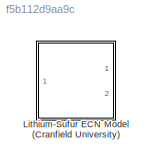
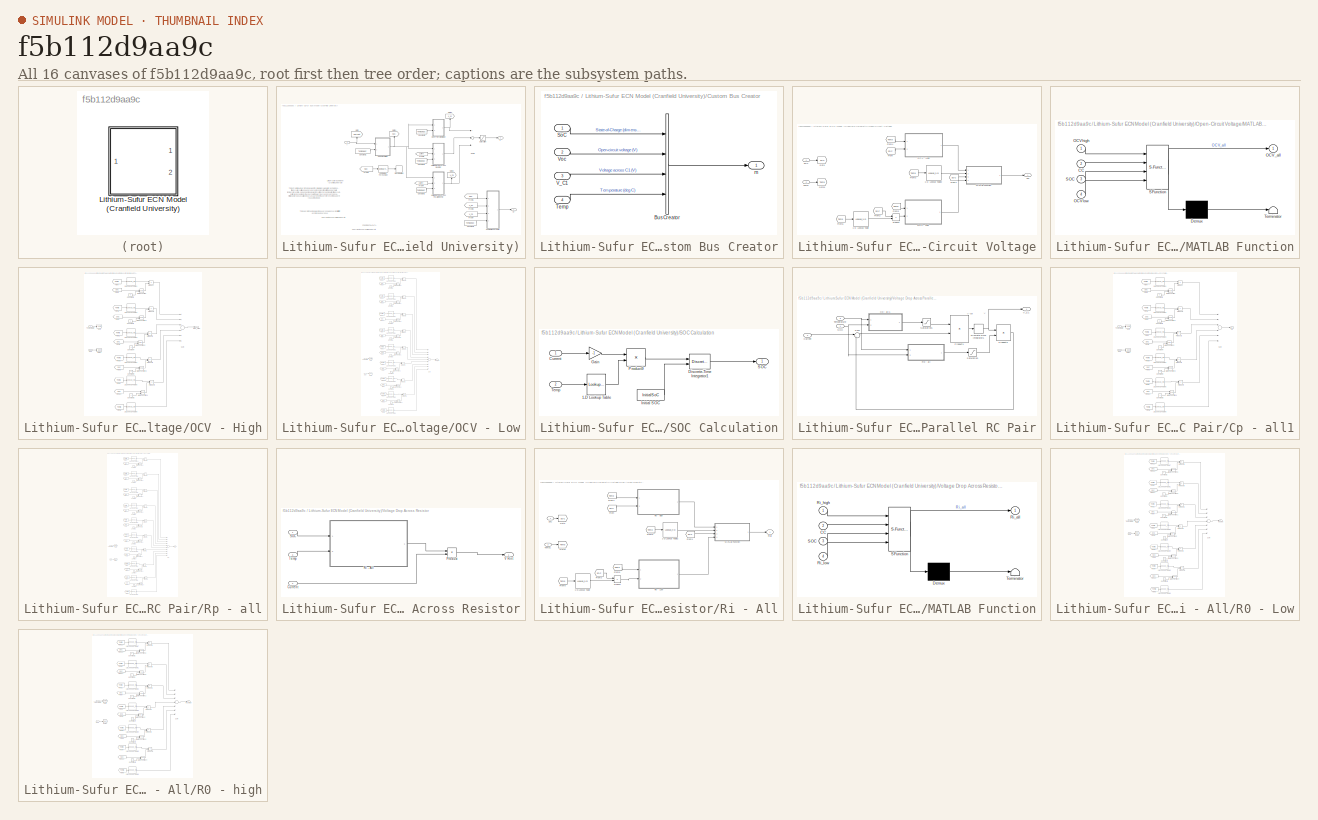
[diagram: thumbnail index - all 16 canvases of the model, root first then tree order]
MODEL slx_f5b112d9aa9c
KIND library
CONFIG AbsTol = auto
CONFIG FixedStep = auto
CONFIG MaxStep = auto
CONFIG MinStep = auto
CONFIG RelTol = 1e-3
CONFIG SampleTimeConstraint = Unconstrained
CONFIG Solver = ode45
CONFIG SolverMode = Auto
CONFIG SolverName = ode45
CONFIG StartTime = 0.0
CONFIG StopTime = 10.0
BLOCK [SubSystem] Lithium-Sufur ECN Model (Cranfield University)
  AttributesFormatString = Temperature = %<TempDegC> deg C\nInitial SoC = %<InitialSoC>
  Ports = [1, 2]
  RequestExecContextInheritance = off
  Variant = off
BLOCK [Constant] Lithium-Sufur ECN Model (Cranfield University)/Constant1
  Value = TempDegC
BLOCK [Constant] Lithium-Sufur ECN Model (Cranfield University)/Constant2
  Value = TempDegC
BLOCK [Constant] Lithium-Sufur ECN Model (Cranfield University)/Constant3
  Value = TempDegC
BLOCK [Constant] Lithium-Sufur ECN Model (Cranfield University)/Constant4
  Value = TempDegC
BLOCK [Constant] Lithium-Sufur ECN Model (Cranfield University)/Constant5
  Value = TempDegC
BLOCK [SubSystem] Lithium-Sufur ECN Model (Cranfield University)/Custom Bus Creator
  Ports = [4, 1]
  RequestExecContextInheritance = off
  Variant = off
BLOCK [BusCreator] Lithium-Sufur ECN Model (Cranfield University)/Custom Bus Creator/Bus Creator
  DisplayOption = bar
  InheritFromInputs = on
  Inputs = 4
  Ports = [4, 1]
BLOCK [Inport] Lithium-Sufur ECN Model (Cranfield University)/Custom Bus Creator/SoC
  IconDisplay = Port number
  PortDimensions = 1
  SampleTime = Ts
BLOCK [Inport] Lithium-Sufur ECN Model (Cranfield University)/Custom Bus Creator/Temp
  IconDisplay = Port number
  Port = 4
  PortDimensions = 1
  SampleTime = Ts
BLOCK [Inport] Lithium-Sufur ECN Model (Cranfield University)/Custom Bus Creator/V_C1
  IconDisplay = Port number
  Port = 3
  PortDimensions = 1
  SampleTime = Ts
BLOCK [Inport] Lithium-Sufur ECN Model (Cranfield University)/Custom Bus Creator/Voc
  IconDisplay = Port number
  Port = 2
  PortDimensions = 1
  SampleTime = Ts
BLOCK [Outport] Lithium-Sufur ECN Model (Cranfield University)/Custom Bus Creator/m
  IconDisplay = Port number
BLOCK [From] Lithium-Sufur ECN Model (Cranfield University)/From2
  GotoTag = SoC
BLOCK [From] Lithium-Sufur ECN Model (Cranfield University)/From4
  GotoTag = Current
BLOCK [From] Lithium-Sufur ECN Model (Cranfield University)/From5
  GotoTag = SoC
BLOCK [From] Lithium-Sufur ECN Model (Cranfield University)/From6
  GotoTag = Current
BLOCK [From] Lithium-Sufur ECN Model (Cranfield University)/From7
  GotoTag = V_C1
BLOCK [From] Lithium-Sufur ECN Model (Cranfield University)/From8
  GotoTag = V_oc
BLOCK [Goto] Lithium-Sufur ECN Model (Cranfield University)/Goto
  GotoTag = Current
BLOCK [Goto] Lithium-Sufur ECN Model (Cranfield University)/Goto1
  GotoTag = SoC
BLOCK [Goto] Lithium-Sufur ECN Model (Cranfield University)/Goto2
  GotoTag = V_C1
BLOCK [Goto] Lithium-Sufur ECN Model (Cranfield University)/Goto3
  GotoTag = V_oc
BLOCK [Inport] Lithium-Sufur ECN Model (Cranfield University)/I
  AttributesFormatString = SampleTime=%<SampleTime>
  IconDisplay = Port number
  PortDimensions = 1
  SampleTime = Ts
BLOCK [SubSystem] Lithium-Sufur ECN Model (Cranfield University)/Open-Circuit Voltage
  Ports = [2, 1]
  RequestExecContextInheritance = off
  Variant = off
BLOCK [Lookup_n-D] Lithium-Sufur ECN Model (Cranfield University)/Open-Circuit Voltage/1-D Lookup Table
  BreakpointsForDimension1 = Tempstrech
  InternalRulePriority = Speed
  NumberOfTableDimensions = 1
  Ports = [1, 1]
  RndMeth = Simplest
  Table = StrechFactors
BLOCK [Lookup_n-D] Lithium-Sufur ECN Model (Cranfield University)/Open-Circuit Voltage/1-D Lookup Table2
  BreakpointsForDimension1 = Temp'
  InternalRulePriority = Speed
  NumberOfTableDimensions = 1
  Ports = [1, 1]
  RndMeth = Simplest
  Table = C_man
BLOCK [From] Lithium-Sufur ECN Model (Cranfield University)/Open-Circuit Voltage/From
  GotoTag = SOC
BLOCK [From] Lithium-Sufur ECN Model (Cranfield University)/Open-Circuit Voltage/From1
  GotoTag = SOC
BLOCK [From] Lithium-Sufur ECN Model (Cranfield University)/Open-Circuit Voltage/From2
  GotoTag = SOC
BLOCK [From] Lithium-Sufur ECN Model (Cranfield University)/Open-Circuit Voltage/From3
  GotoTag = Temp
BLOCK [From] Lithium-Sufur ECN Model (Cranfield University)/Open-Circuit Voltage/From4
  GotoTag = Temp
BLOCK [From] Lithium-Sufur ECN Model (Cranfield University)/Open-Circuit Voltage/From5
  GotoTag = Temp
BLOCK [From] Lithium-Sufur ECN Model (Cranfield University)/Open-Circuit Voltage/From6
  GotoTag = Temp
BLOCK [Goto] Lithium-Sufur ECN Model (Cranfield University)/Open-Circuit Voltage/Goto
  GotoTag = SOC
BLOCK [Goto] Lithium-Sufur ECN Model (Cranfield University)/Open-Circuit Voltage/Goto1
  GotoTag = Temp
BLOCK [SubSystem] Lithium-Sufur ECN Model (Cranfield University)/Open-Circuit Voltage/MATLAB Function
  ErrorFcn = Stateflow.Translate.translate
  PermitHierarchicalResolution = ExplicitOnly
  Ports = [4, 1]
  RequestExecContextInheritance = off
  SFBlockType = MATLAB Function
  TreatAsAtomicUnit = on
  Variant = off
BLOCK [Demux] Lithium-Sufur ECN Model (Cranfield University)/Open-Circuit Voltage/MATLAB Function/ Demux 
  Outputs = 1
  Ports = [1, 1]
BLOCK [S-Function] Lithium-Sufur ECN Model (Cranfield University)/Open-Circuit Voltage/MATLAB Function/ SFunction 
  EnableBusSupport = on
  FunctionName = sf_sfun
  PortCounts = [4 2]
  Ports = [4, 2]
  SFunctionDeploymentMode = off
  Tag = Stateflow S-Function LiS_ECN_Model_lib 2
BLOCK [Terminator] Lithium-Sufur ECN Model (Cranfield University)/Open-Circuit Voltage/MATLAB Function/ Terminator 
BLOCK [Inport] Lithium-Sufur ECN Model (Cranfield University)/Open-Circuit Voltage/MATLAB Function/CC
  IconDisplay = Port number
  Port = 2
BLOCK [Outport] Lithium-Sufur ECN Model (Cranfield University)/Open-Circuit Voltage/MATLAB Function/OCV_all
  IconDisplay = Port number
BLOCK [Inport] Lithium-Sufur ECN Model (Cranfield University)/Open-Circuit Voltage/MATLAB Function/OCVhigh
  IconDisplay = Port number
BLOCK [Inport] Lithium-Sufur ECN Model (Cranfield University)/Open-Circuit Voltage/MATLAB Function/OCVlow
  IconDisplay = Port number
  Port = 4
BLOCK [Inport] Lithium-Sufur ECN Model (Cranfield University)/Open-Circuit Voltage/MATLAB Function/SOC
  IconDisplay = Port number
  Port = 3
BLOCK [SubSystem] Lithium-Sufur ECN Model (Cranfield University)/Open-Circuit Voltage/OCV - High
  Ports = [2, 1]
  RequestExecContextInheritance = off
  Variant = off
BLOCK [Lookup_n-D] Lithium-Sufur ECN Model (Cranfield University)/Open-Circuit Voltage/OCV - High/1-D Lookup Table1
  BreakpointsForDimension1 = T
  InternalRulePriority = Speed
  NumberOfTableDimensions = 1
  Ports = [1, 1]
  RndMeth = Simplest
  Table = [OCV_POLYhigh20(1) ; OCV_POLYhigh30(1) ; OCV_POLYhigh50(1)]
BLOCK [Lookup_n-D] Lithium-Sufur ECN Model (Cranfield University)/Open-Circuit Voltage/OCV - High/1-D Lookup Table2
  BreakpointsForDimension1 = T
  InternalRulePriority = Speed
  NumberOfTableDimensions = 1
  Ports = [1, 1]
  RndMeth = Simplest
  Table = [OCV_POLYhigh20(2) ; OCV_POLYhigh30(2) ; OCV_POLYhigh50(2)]
BLOCK [Lookup_n-D] Lithium-Sufur ECN Model (Cranfield University)/Open-Circuit Voltage/OCV - High/1-D Lookup Table3
  BreakpointsForDimension1 = T
  InternalRulePriority = Speed
  NumberOfTableDimensions = 1
  Ports = [1, 1]
  RndMeth = Simplest
  Table = [OCV_POLYhigh20(3) ; OCV_POLYhigh30(3) ; OCV_POLYhigh50(3)]
BLOCK [Lookup_n-D] Lithium-Sufur ECN Model (Cranfield University)/Open-Circuit Voltage/OCV - High/1-D Lookup Table4
  BreakpointsForDimension1 = T
  InternalRulePriority = Speed
  NumberOfTableDimensions = 1
  Ports = [1, 1]
  RndMeth = Simplest
  Table = [OCV_POLYhigh20(4) ; OCV_POLYhigh30(4) ; OCV_POLYhigh50(4)]
BLOCK [Lookup_n-D] Lithium-Sufur ECN Model (Cranfield University)/Open-Circuit Voltage/OCV - High/1-D Lookup Table5
  BreakpointsForDimension1 = T
  InternalRulePriority = Speed
  NumberOfTableDimensions = 1
  Ports = [1, 1]
  RndMeth = Simplest
  Table = [OCV_POLYhigh20(5) ; OCV_POLYhigh30(5) ; OCV_POLYhigh50(5)]
BLOCK [Lookup_n-D] Lithium-Sufur ECN Model (Cranfield University)/Open-Circuit Voltage/OCV - High/1-D Lookup Table6
  BreakpointsForDimension1 = T
  InternalRulePriority = Speed
  NumberOfTableDimensions = 1
  Ports = [1, 1]
  RndMeth = Simplest
  Table = [OCV_POLYhigh20(6) ; OCV_POLYhigh30(6) ; OCV_POLYhigh50(6)]
BLOCK [Constant] Lithium-Sufur ECN Model (Cranfield University)/Open-Circuit Voltage/OCV - High/Constant3
BLOCK [Constant] Lithium-Sufur ECN Model (Cranfield University)/Open-Circuit Voltage/OCV - High/Constant4
  Value = 2
BLOCK [Constant] Lithium-Sufur ECN Model (Cranfield University)/Open-Circuit Voltage/OCV - High/Constant5
  Value = 4
BLOCK [Constant] Lithium-Sufur ECN Model (Cranfield University)/Open-Circuit Voltage/OCV - High/Constant6
  Value = 5
BLOCK [Constant] Lithium-Sufur ECN Model (Cranfield University)/Open-Circuit Voltage/OCV - High/Constant7
  Value = 3
BLOCK [From] Lithium-Sufur ECN Model (Cranfield University)/Open-Circuit Voltage/OCV - High/From
  GotoTag = Temp
BLOCK [From] Lithium-Sufur ECN Model (Cranfield University)/Open-Circuit Voltage/OCV - High/From1
  GotoTag = Temp
BLOCK [From] Lithium-Sufur ECN Model (Cranfield University)/Open-Circuit Voltage/OCV - High/From10
  GotoTag = SoC
BLOCK [From] Lithium-Sufur ECN Model (Cranfield University)/Open-Circuit Voltage/OCV - High/From2
  GotoTag = Temp
BLOCK [From] Lithium-Sufur ECN Model (Cranfield University)/Open-Circuit Voltage/OCV - High/From3
  GotoTag = Temp
BLOCK [From] Lithium-Sufur ECN Model (Cranfield University)/Open-Circuit Voltage/OCV - High/From4
  GotoTag = Temp
BLOCK [From] Lithium-Sufur ECN Model (Cranfield University)/Open-Circuit Voltage/OCV - High/From5
  GotoTag = Temp
BLOCK [From] Lithium-Sufur ECN Model (Cranfield University)/Open-Circuit Voltage/OCV - High/From6
  GotoTag = SoC
BLOCK [From] Lithium-Sufur ECN Model (Cranfield University)/Open-Circuit Voltage/OCV - High/From7
  GotoTag = SoC
BLOCK [From] Lithium-Sufur ECN Model (Cranfield University)/Open-Circuit Voltage/OCV - High/From8
  GotoTag = SoC
BLOCK [From] Lithium-Sufur ECN Model (Cranfield University)/Open-Circuit Voltage/OCV - High/From9
  GotoTag = SoC
BLOCK [Goto] Lithium-Sufur ECN Model (Cranfield University)/Open-Circuit Voltage/OCV - High/Goto
  GotoTag = Temp
BLOCK [Goto] Lithium-Sufur ECN Model (Cranfield University)/Open-Circuit Voltage/OCV - High/Goto1
  GotoTag = SoC
BLOCK [Math] Lithium-Sufur ECN Model (Cranfield University)/Open-Circuit Voltage/OCV - High/Math Function
  Operator = pow
  Ports = [2, 1]
BLOCK [Math] Lithium-Sufur ECN Model (Cranfield University)/Open-Circuit Voltage/OCV - High/Math Function1
  Operator = pow
  Ports = [2, 1]
BLOCK [Math] Lithium-Sufur ECN Model (Cranfield University)/Open-Circuit Voltage/OCV - High/Math Function2
  Operator = pow
  Ports = [2, 1]
BLOCK [Math] Lithium-Sufur ECN Model (Cranfield University)/Open-Circuit Voltage/OCV - High/Math Function3
  Operator = pow
  Ports = [2, 1]
BLOCK [Math] Lithium-Sufur ECN Model (Cranfield University)/Open-Circuit Voltage/OCV - High/Math Function4
  Operator = pow
  Ports = [2, 1]
BLOCK [Outport] Lithium-Sufur ECN Model (Cranfield University)/Open-Circuit Voltage/OCV - High/OCV_high 
  IconDisplay = Port number
BLOCK [Product] Lithium-Sufur ECN Model (Cranfield University)/Open-Circuit Voltage/OCV - High/Product
  InputSameDT = off
  OutDataTypeStr = Inherit: Inherit via internal rule
  Ports = [2, 1]
  RndMeth = Floor
  SaturateOnIntegerOverflow = off
BLOCK [Product] Lithium-Sufur ECN Model (Cranfield University)/Open-Circuit Voltage/OCV - High/Product1
  InputSameDT = off
  OutDataTypeStr = Inherit: Inherit via internal rule
  Ports = [2, 1]
  RndMeth = Floor
  SaturateOnIntegerOverflow = off
BLOCK [Product] Lithium-Sufur ECN Model (Cranfield University)/Open-Circuit Voltage/OCV - High/Product2
  InputSameDT = off
  OutDataTypeStr = Inherit: Inherit via internal rule
  Ports = [2, 1]
  RndMeth = Floor
  SaturateOnIntegerOverflow = off
BLOCK [Product] Lithium-Sufur ECN Model (Cranfield University)/Open-Circuit Voltage/OCV - High/Product3
  InputSameDT = off
  OutDataTypeStr = Inherit: Inherit via internal rule
  Ports = [2, 1]
  RndMeth = Floor
  SaturateOnIntegerOverflow = off
BLOCK [Product] Lithium-Sufur ECN Model (Cranfield University)/Open-Circuit Voltage/OCV - High/Product4
  InputSameDT = off
  OutDataTypeStr = Inherit: Inherit via internal rule
  Ports = [2, 1]
  RndMeth = Floor
  SaturateOnIntegerOverflow = off
BLOCK [Inport] Lithium-Sufur ECN Model (Cranfield University)/Open-Circuit Voltage/OCV - High/SoC
  IconDisplay = Port number
  Port = 2
BLOCK [Sum] Lithium-Sufur ECN Model (Cranfield University)/Open-Circuit Voltage/OCV - High/Sum
  InputSameDT = off
  Inputs = ++++++
  OutDataTypeStr = Inherit: Inherit via internal rule
  Ports = [6, 1]
  SaturateOnIntegerOverflow = off
BLOCK [Inport] Lithium-Sufur ECN Model (Cranfield University)/Open-Circuit Voltage/OCV - High/Temperature
  IconDisplay = Port number
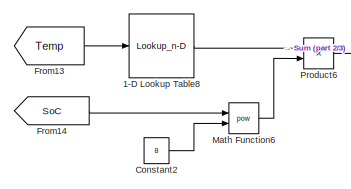
[diagram: Lithium-Sufur ECN Model (Cranfield University)/Open-Circuit Voltage/OCV - Low - part 1/3, top center region]
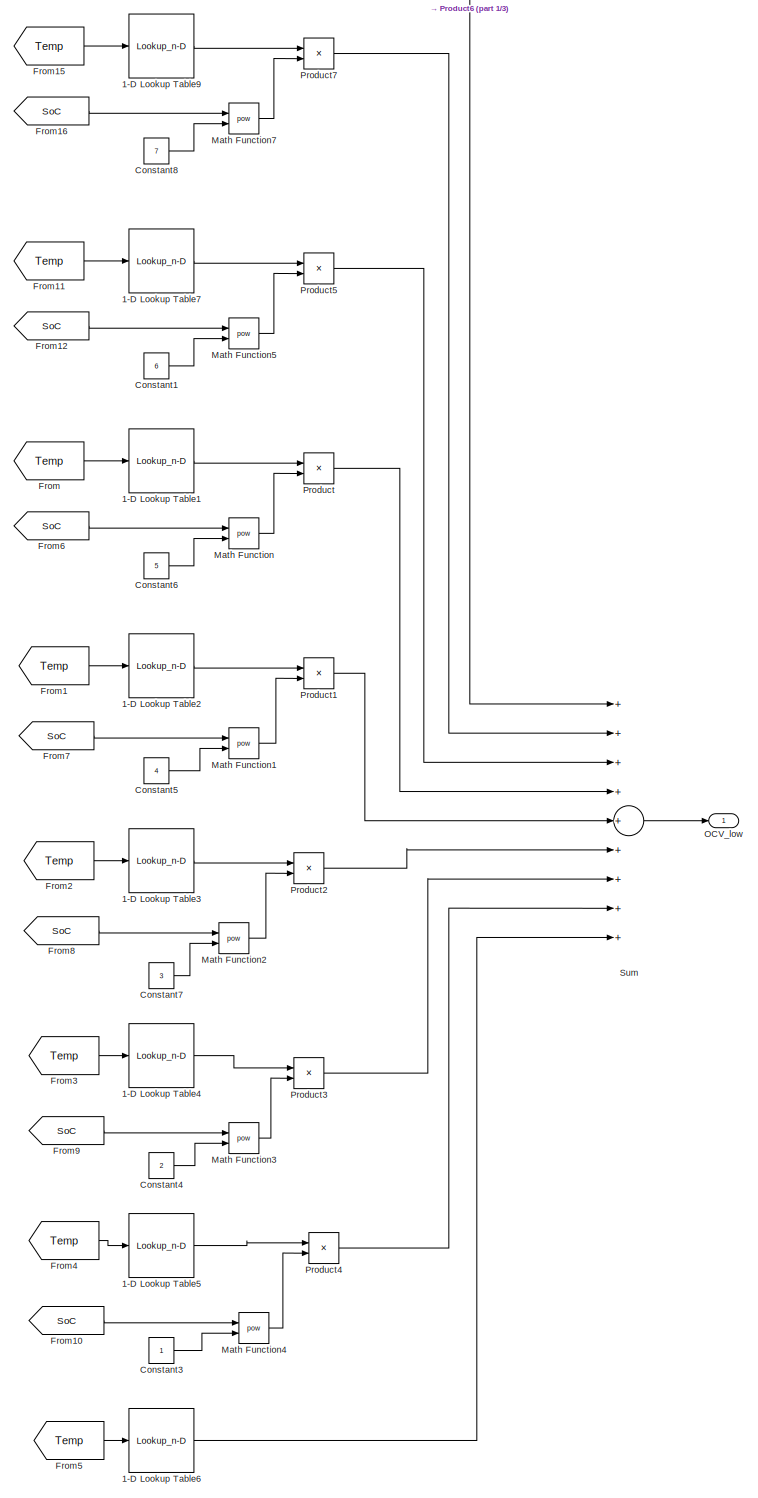
[diagram: Lithium-Sufur ECN Model (Cranfield University)/Open-Circuit Voltage/OCV - Low - part 2/3, most of the canvas]
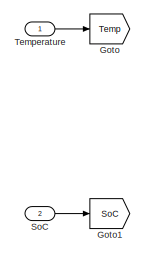
[diagram: Lithium-Sufur ECN Model (Cranfield University)/Open-Circuit Voltage/OCV - Low - part 3/3, middle left region]
BLOCK [SubSystem] Lithium-Sufur ECN Model (Cranfield University)/Open-Circuit Voltage/OCV - Low
  Ports = [2, 1]
  RequestExecContextInheritance = off
  Variant = off
BLOCK [Lookup_n-D] Lithium-Sufur ECN Model (Cranfield University)/Open-Circuit Voltage/OCV - Low/1-D Lookup Table1
  BreakpointsForDimension1 = T
  InternalRulePriority = Speed
  NumberOfTableDimensions = 1
  Ports = [1, 1]
  RndMeth = Simplest
  Table = [OCV_POLYlow20(4) ; OCV_POLYlow30(4) ; OCV_POLYlow50(4)]
BLOCK [Lookup_n-D] Lithium-Sufur ECN Model (Cranfield University)/Open-Circuit Voltage/OCV - Low/1-D Lookup Table2
  BreakpointsForDimension1 = T
  InternalRulePriority = Speed
  NumberOfTableDimensions = 1
  Ports = [1, 1]
  RndMeth = Simplest
  Table = [OCV_POLYlow20(5) ; OCV_POLYlow30(5) ; OCV_POLYlow50(5)]
BLOCK [Lookup_n-D] Lithium-Sufur ECN Model (Cranfield University)/Open-Circuit Voltage/OCV - Low/1-D Lookup Table3
  BreakpointsForDimension1 = T
  InternalRulePriority = Speed
  NumberOfTableDimensions = 1
  Ports = [1, 1]
  RndMeth = Simplest
  Table = [OCV_POLYlow20(6) ; OCV_POLYlow30(6) ; OCV_POLYlow50(6)]
BLOCK [Lookup_n-D] Lithium-Sufur ECN Model (Cranfield University)/Open-Circuit Voltage/OCV - Low/1-D Lookup Table4
  BreakpointsForDimension1 = T
  InternalRulePriority = Speed
  NumberOfTableDimensions = 1
  Ports = [1, 1]
  RndMeth = Simplest
  Table = [OCV_POLYlow20(7) ; OCV_POLYlow30(7) ; OCV_POLYlow50(7)]
BLOCK [Lookup_n-D] Lithium-Sufur ECN Model (Cranfield University)/Open-Circuit Voltage/OCV - Low/1-D Lookup Table5
  BreakpointsForDimension1 = T
  InternalRulePriority = Speed
  NumberOfTableDimensions = 1
  Ports = [1, 1]
  RndMeth = Simplest
  Table = [OCV_POLYlow20(8) ; OCV_POLYlow30(8) ; OCV_POLYlow50(8)]
BLOCK [Lookup_n-D] Lithium-Sufur ECN Model (Cranfield University)/Open-Circuit Voltage/OCV - Low/1-D Lookup Table6
  BreakpointsForDimension1 = T
  InternalRulePriority = Speed
  NumberOfTableDimensions = 1
  Ports = [1, 1]
  RndMeth = Simplest
  Table = [OCV_POLYlow20(9) ; OCV_POLYlow30(9) ; OCV_POLYlow50(9)]
BLOCK [Lookup_n-D] Lithium-Sufur ECN Model (Cranfield University)/Open-Circuit Voltage/OCV - Low/1-D Lookup Table7
  BreakpointsForDimension1 = T
  InternalRulePriority = Speed
  NumberOfTableDimensions = 1
  Ports = [1, 1]
  RndMeth = Simplest
  Table = [OCV_POLYlow20(3) ; OCV_POLYlow30(3) ; OCV_POLYlow50(3)]
BLOCK [Lookup_n-D] Lithium-Sufur ECN Model (Cranfield University)/Open-Circuit Voltage/OCV - Low/1-D Lookup Table8
  BreakpointsForDimension1 = T
  InternalRulePriority = Speed
  NumberOfTableDimensions = 1
  Ports = [1, 1]
  RndMeth = Simplest
  Table = [OCV_POLYlow20(1) ; OCV_POLYlow30(1) ; OCV_POLYlow50(1)]
BLOCK [Lookup_n-D] Lithium-Sufur ECN Model (Cranfield University)/Open-Circuit Voltage/OCV - Low/1-D Lookup Table9
  BreakpointsForDimension1 = T
  InternalRulePriority = Speed
  NumberOfTableDimensions = 1
  Ports = [1, 1]
  RndMeth = Simplest
  Table = [OCV_POLYlow20(2) ; OCV_POLYlow30(2) ; OCV_POLYlow50(2)]
BLOCK [Constant] Lithium-Sufur ECN Model (Cranfield University)/Open-Circuit Voltage/OCV - Low/Constant1
  Value = 6
BLOCK [Constant] Lithium-Sufur ECN Model (Cranfield University)/Open-Circuit Voltage/OCV - Low/Constant2
  Value = 8
BLOCK [Constant] Lithium-Sufur ECN Model (Cranfield University)/Open-Circuit Voltage/OCV - Low/Constant3
BLOCK [Constant] Lithium-Sufur ECN Model (Cranfield University)/Open-Circuit Voltage/OCV - Low/Constant4
  Value = 2
BLOCK [Constant] Lithium-Sufur ECN Model (Cranfield University)/Open-Circuit Voltage/OCV - Low/Constant5
  Value = 4
BLOCK [Constant] Lithium-Sufur ECN Model (Cranfield University)/Open-Circuit Voltage/OCV - Low/Constant6
  Value = 5
BLOCK [Constant] Lithium-Sufur ECN Model (Cranfield University)/Open-Circuit Voltage/OCV - Low/Constant7
  Value = 3
BLOCK [Constant] Lithium-Sufur ECN Model (Cranfield University)/Open-Circuit Voltage/OCV - Low/Constant8
  Value = 7
BLOCK [From] Lithium-Sufur ECN Model (Cranfield University)/Open-Circuit Voltage/OCV - Low/From
  GotoTag = Temp
BLOCK [From] Lithium-Sufur ECN Model (Cranfield University)/Open-Circuit Voltage/OCV - Low/From1
  GotoTag = Temp
BLOCK [From] Lithium-Sufur ECN Model (Cranfield University)/Open-Circuit Voltage/OCV - Low/From10
  GotoTag = SoC
BLOCK [From] Lithium-Sufur ECN Model (Cranfield University)/Open-Circuit Voltage/OCV - Low/From11
  GotoTag = Temp
BLOCK [From] Lithium-Sufur ECN Model (Cranfield University)/Open-Circuit Voltage/OCV - Low/From12
  GotoTag = SoC
BLOCK [From] Lithium-Sufur ECN Model (Cranfield University)/Open-Circuit Voltage/OCV - Low/From13
  GotoTag = Temp
BLOCK [From] Lithium-Sufur ECN Model (Cranfield University)/Open-Circuit Voltage/OCV - Low/From14
  GotoTag = SoC
BLOCK [From] Lithium-Sufur ECN Model (Cranfield University)/Open-Circuit Voltage/OCV - Low/From15
  GotoTag = Temp
BLOCK [From] Lithium-Sufur ECN Model (Cranfield University)/Open-Circuit Voltage/OCV - Low/From16
  GotoTag = SoC
BLOCK [From] Lithium-Sufur ECN Model (Cranfield University)/Open-Circuit Voltage/OCV - Low/From2
  GotoTag = Temp
BLOCK [From] Lithium-Sufur ECN Model (Cranfield University)/Open-Circuit Voltage/OCV - Low/From3
  GotoTag = Temp
BLOCK [From] Lithium-Sufur ECN Model (Cranfield University)/Open-Circuit Voltage/OCV - Low/From4
  GotoTag = Temp
BLOCK [From] Lithium-Sufur ECN Model (Cranfield University)/Open-Circuit Voltage/OCV - Low/From5
  GotoTag = Temp
BLOCK [From] Lithium-Sufur ECN Model (Cranfield University)/Open-Circuit Voltage/OCV - Low/From6
  GotoTag = SoC
BLOCK [From] Lithium-Sufur ECN Model (Cranfield University)/Open-Circuit Voltage/OCV - Low/From7
  GotoTag = SoC
BLOCK [From] Lithium-Sufur ECN Model (Cranfield University)/Open-Circuit Voltage/OCV - Low/From8
  GotoTag = SoC
BLOCK [From] Lithium-Sufur ECN Model (Cranfield University)/Open-Circuit Voltage/OCV - Low/From9
  GotoTag = SoC
BLOCK [Goto] Lithium-Sufur ECN Model (Cranfield University)/Open-Circuit Voltage/OCV - Low/Goto
  GotoTag = Temp
BLOCK [Goto] Lithium-Sufur ECN Model (Cranfield University)/Open-Circuit Voltage/OCV - Low/Goto1
  GotoTag = SoC
BLOCK [Math] Lithium-Sufur ECN Model (Cranfield University)/Open-Circuit Voltage/OCV - Low/Math Function
  Operator = pow
  Ports = [2, 1]
BLOCK [Math] Lithium-Sufur ECN Model (Cranfield University)/Open-Circuit Voltage/OCV - Low/Math Function1
  Operator = pow
  Ports = [2, 1]
BLOCK [Math] Lithium-Sufur ECN Model (Cranfield University)/Open-Circuit Voltage/OCV - Low/Math Function2
  Operator = pow
  Ports = [2, 1]
BLOCK [Math] Lithium-Sufur ECN Model (Cranfield University)/Open-Circuit Voltage/OCV - Low/Math Function3
  Operator = pow
  Ports = [2, 1]
BLOCK [Math] Lithium-Sufur ECN Model (Cranfield University)/Open-Circuit Voltage/OCV - Low/Math Function4
  Operator = pow
  Ports = [2, 1]
BLOCK [Math] Lithium-Sufur ECN Model (Cranfield University)/Open-Circuit Voltage/OCV - Low/Math Function5
  Operator = pow
  Ports = [2, 1]
BLOCK [Math] Lithium-Sufur ECN Model (Cranfield University)/Open-Circuit Voltage/OCV - Low/Math Function6
  Operator = pow
  Ports = [2, 1]
BLOCK [Math] Lithium-Sufur ECN Model (Cranfield University)/Open-Circuit Voltage/OCV - Low/Math Function7
  Operator = pow
  Ports = [2, 1]
BLOCK [Outport] Lithium-Sufur ECN Model (Cranfield University)/Open-Circuit Voltage/OCV - Low/OCV_low 
  IconDisplay = Port number
BLOCK [Product] Lithium-Sufur ECN Model (Cranfield University)/Open-Circuit Voltage/OCV - Low/Product
  InputSameDT = off
  OutDataTypeStr = Inherit: Inherit via internal rule
  Ports = [2, 1]
  RndMeth = Floor
  SaturateOnIntegerOverflow = off
BLOCK [Product] Lithium-Sufur ECN Model (Cranfield University)/Open-Circuit Voltage/OCV - Low/Product1
  InputSameDT = off
  OutDataTypeStr = Inherit: Inherit via internal rule
  Ports = [2, 1]
  RndMeth = Floor
  SaturateOnIntegerOverflow = off
BLOCK [Product] Lithium-Sufur ECN Model (Cranfield University)/Open-Circuit Voltage/OCV - Low/Product2
  InputSameDT = off
  OutDataTypeStr = Inherit: Inherit via internal rule
  Ports = [2, 1]
  RndMeth = Floor
  SaturateOnIntegerOverflow = off
BLOCK [Product] Lithium-Sufur ECN Model (Cranfield University)/Open-Circuit Voltage/OCV - Low/Product3
  InputSameDT = off
  OutDataTypeStr = Inherit: Inherit via internal rule
  Ports = [2, 1]
  RndMeth = Floor
  SaturateOnIntegerOverflow = off
BLOCK [Product] Lithium-Sufur ECN Model (Cranfield University)/Open-Circuit Voltage/OCV - Low/Product4
  InputSameDT = off
  OutDataTypeStr = Inherit: Inherit via internal rule
  Ports = [2, 1]
  RndMeth = Floor
  SaturateOnIntegerOverflow = off
BLOCK [Product] Lithium-Sufur ECN Model (Cranfield University)/Open-Circuit Voltage/OCV - Low/Product5
  InputSameDT = off
  OutDataTypeStr = Inherit: Inherit via internal rule
  Ports = [2, 1]
  RndMeth = Floor
  SaturateOnIntegerOverflow = off
BLOCK [Product] Lithium-Sufur ECN Model (Cranfield University)/Open-Circuit Voltage/OCV - Low/Product6
  InputSameDT = off
  OutDataTypeStr = Inherit: Inherit via internal rule
  Ports = [2, 1]
  RndMeth = Floor
  SaturateOnIntegerOverflow = off
BLOCK [Product] Lithium-Sufur ECN Model (Cranfield University)/Open-Circuit Voltage/OCV - Low/Product7
  InputSameDT = off
  OutDataTypeStr = Inherit: Inherit via internal rule
  Ports = [2, 1]
  RndMeth = Floor
  SaturateOnIntegerOverflow = off
BLOCK [Inport] Lithium-Sufur ECN Model (Cranfield University)/Open-Circuit Voltage/OCV - Low/SoC
  IconDisplay = Port number
  Port = 2
BLOCK [Sum] Lithium-Sufur ECN Model (Cranfield University)/Open-Circuit Voltage/OCV - Low/Sum
  InputSameDT = off
  Inputs = +++++++++
  OutDataTypeStr = Inherit: Inherit via internal rule
  Ports = [9, 1]
  SaturateOnIntegerOverflow = off
BLOCK [Inport] Lithium-Sufur ECN Model (Cranfield University)/Open-Circuit Voltage/OCV - Low/Temperature
  IconDisplay = Port number
BLOCK [Product] Lithium-Sufur ECN Model (Cranfield University)/Open-Circuit Voltage/Product
  InputSameDT = off
  OutDataTypeStr = Inherit: Inherit via internal rule
  Ports = [2, 1]
  RndMeth = Floor
  SaturateOnIntegerOverflow = off
BLOCK [Inport] Lithium-Sufur ECN Model (Cranfield University)/Open-Circuit Voltage/SOC
  IconDisplay = Port number
BLOCK [Inport] Lithium-Sufur ECN Model (Cranfield University)/Open-Circuit Voltage/Temp
  IconDisplay = Port number
  Port = 2
BLOCK [Outport] Lithium-Sufur ECN Model (Cranfield University)/Open-Circuit Voltage/Voc
  IconDisplay = Port number
BLOCK [Reference] Lithium-Sufur ECN Model (Cranfield University)/SOC Below Threshold?  REF=simulink/Logic and Bit
Operations/Compare
To Constant
  Ports = [1, 1]
  SourceBlock = simulink/Logic and Bit\nOperations/Compare\nTo Constant
  SourceType = Compare To Constant
BLOCK [SubSystem] Lithium-Sufur ECN Model (Cranfield University)/SOC Calculation
  Ports = [2, 1]
  RequestExecContextInheritance = off
  Variant = off
BLOCK [Lookup_n-D] Lithium-Sufur ECN Model (Cranfield University)/SOC Calculation/1-D Lookup Table
  BreakpointsForDimension1 = T
  InternalRulePriority = Speed
  NumberOfTableDimensions = 1
  Ports = [1, 1]
  RndMeth = Simplest
  Table = Cap_all
BLOCK [Inport] Lithium-Sufur ECN Model (Cranfield University)/SOC Calculation/Current
  IconDisplay = Port number
BLOCK [DiscreteIntegrator] Lithium-Sufur ECN Model (Cranfield University)/SOC Calculation/Discrete-Time Integrator1
  ICPrevOutput = DiscIntNeverNeededParam
  ICPrevScaledInput = DiscIntNeverNeededParam
  InitialConditionSetting = State (most efficient)
  InitialConditionSource = external
  Ports = [2, 1]
  SampleTime = Ts
BLOCK [Gain] Lithium-Sufur ECN Model (Cranfield University)/SOC Calculation/Gain
  Gain = -1
  OutDataTypeStr = Inherit: Inherit via internal rule
  ParamDataTypeStr = Inherit: Inherit via internal rule
  SaturateOnIntegerOverflow = off
BLOCK [Constant] Lithium-Sufur ECN Model (Cranfield University)/SOC Calculation/Initial SOC
  Value = InitialSoC
BLOCK [Product] Lithium-Sufur ECN Model (Cranfield University)/SOC Calculation/Product9
  InputSameDT = off
  Inputs = */
  OutDataTypeStr = Inherit: Inherit via internal rule
  Ports = [2, 1]
  RndMeth = Floor
  SaturateOnIntegerOverflow = off
BLOCK [Outport] Lithium-Sufur ECN Model (Cranfield University)/SOC Calculation/SOC
  IconDisplay = Port number
BLOCK [Inport] Lithium-Sufur ECN Model (Cranfield University)/SOC Calculation/Temp
  IconDisplay = Port number
  Port = 2
BLOCK [Saturate] Lithium-Sufur ECN Model (Cranfield University)/Saturation
  AttributesFormatString = UpperLimit=%<UpperLimit>\nLowerLimit=%<LowerLimit>
  InputPortMap = u0
  LowerLimit = 0
  Ports = [1, 1]
  UpperLimit = inf
BLOCK [Stop] Lithium-Sufur ECN Model (Cranfield University)/Stop Simulation
BLOCK [Sum] Lithium-Sufur ECN Model (Cranfield University)/Sum2
  InputSameDT = off
  Inputs = +--
  OutDataTypeStr = Inherit: Inherit via internal rule
  Ports = [3, 1]
  SaturateOnIntegerOverflow = off
BLOCK [Outport] Lithium-Sufur ECN Model (Cranfield University)/V
  AttributesFormatString = SampleTime=%<SampleTime>
  IconDisplay = Port number
  Port = 2
  SampleTime = Ts
BLOCK [SubSystem] Lithium-Sufur ECN Model (Cranfield University)/Voltage Drop Across Parallel RC Pair
  Ports = [3, 1]
  RequestExecContextInheritance = off
  Variant = off
BLOCK [SubSystem] Lithium-Sufur ECN Model (Cranfield University)/Voltage Drop Across Parallel RC Pair/Cp - all1
  Ports = [2, 1]
  RequestExecContextInheritance = off
  Variant = off
BLOCK [Lookup_n-D] Lithium-Sufur ECN Model (Cranfield University)/Voltage Drop Across Parallel RC Pair/Cp - all1/1-D Lookup Table1
  BreakpointsForDimension1 = T
  InternalRulePriority = Speed
  NumberOfTableDimensions = 1
  Ports = [1, 1]
  RndMeth = Simplest
  Table = [C1_SOC_POLY20(1) ; C1_SOC_POLY30(1) ; C1_SOC_POLY50(1)]
BLOCK [Lookup_n-D] Lithium-Sufur ECN Model (Cranfield University)/Voltage Drop Across Parallel RC Pair/Cp - all1/1-D Lookup Table2
  BreakpointsForDimension1 = T
  InternalRulePriority = Speed
  NumberOfTableDimensions = 1
  Ports = [1, 1]
  RndMeth = Simplest
  Table = [C1_SOC_POLY20(2) ; C1_SOC_POLY30(2) ; C1_SOC_POLY50(2)]
BLOCK [Lookup_n-D] Lithium-Sufur ECN Model (Cranfield University)/Voltage Drop Across Parallel RC Pair/Cp - all1/1-D Lookup Table3
  BreakpointsForDimension1 = T
  InternalRulePriority = Speed
  NumberOfTableDimensions = 1
  Ports = [1, 1]
  RndMeth = Simplest
  Table = [C1_SOC_POLY20(3) ; C1_SOC_POLY30(3) ; C1_SOC_POLY50(3)]
BLOCK [Lookup_n-D] Lithium-Sufur ECN Model (Cranfield University)/Voltage Drop Across Parallel RC Pair/Cp - all1/1-D Lookup Table4
  BreakpointsForDimension1 = T
  InternalRulePriority = Speed
  NumberOfTableDimensions = 1
  Ports = [1, 1]
  RndMeth = Simplest
  Table = [C1_SOC_POLY20(4) ; C1_SOC_POLY30(4) ; C1_SOC_POLY50(4)]
BLOCK [Lookup_n-D] Lithium-Sufur ECN Model (Cranfield University)/Voltage Drop Across Parallel RC Pair/Cp - all1/1-D Lookup Table5
  BreakpointsForDimension1 = T
  InternalRulePriority = Speed
  NumberOfTableDimensions = 1
  Ports = [1, 1]
  RndMeth = Simplest
  Table = [C1_SOC_POLY20(5) ; C1_SOC_POLY30(5) ; C1_SOC_POLY50(5)]
BLOCK [Lookup_n-D] Lithium-Sufur ECN Model (Cranfield University)/Voltage Drop Across Parallel RC Pair/Cp - all1/1-D Lookup Table6
  BreakpointsForDimension1 = T
  InternalRulePriority = Speed
  NumberOfTableDimensions = 1
  Ports = [1, 1]
  RndMeth = Simplest
  Table = [C1_SOC_POLY20(6) ; C1_SOC_POLY30(6) ; C1_SOC_POLY50(6)]
BLOCK [Constant] Lithium-Sufur ECN Model (Cranfield University)/Voltage Drop Across Parallel RC Pair/Cp - all1/Constant3
BLOCK [Constant] Lithium-Sufur ECN Model (Cranfield University)/Voltage Drop Across Parallel RC Pair/Cp - all1/Constant4
  Value = 2
BLOCK [Constant] Lithium-Sufur ECN Model (Cranfield University)/Voltage Drop Across Parallel RC Pair/Cp - all1/Constant5
  Value = 4
BLOCK [Constant] Lithium-Sufur ECN Model (Cranfield University)/Voltage Drop Across Parallel RC Pair/Cp - all1/Constant6
  Value = 5
BLOCK [Constant] Lithium-Sufur ECN Model (Cranfield University)/Voltage Drop Across Parallel RC Pair/Cp - all1/Constant7
  Value = 3
BLOCK [Outport] Lithium-Sufur ECN Model (Cranfield University)/Voltage Drop Across Parallel RC Pair/Cp - all1/Cp 
  IconDisplay = Port number
BLOCK [From] Lithium-Sufur ECN Model (Cranfield University)/Voltage Drop Across Parallel RC Pair/Cp - all1/From
  GotoTag = Temp
BLOCK [From] Lithium-Sufur ECN Model (Cranfield University)/Voltage Drop Across Parallel RC Pair/Cp - all1/From1
  GotoTag = Temp
BLOCK [From] Lithium-Sufur ECN Model (Cranfield University)/Voltage Drop Across Parallel RC Pair/Cp - all1/From10
  GotoTag = SoC
BLOCK [From] Lithium-Sufur ECN Model (Cranfield University)/Voltage Drop Across Parallel RC Pair/Cp - all1/From2
  GotoTag = Temp
BLOCK [From] Lithium-Sufur ECN Model (Cranfield University)/Voltage Drop Across Parallel RC Pair/Cp - all1/From3
  GotoTag = Temp
BLOCK [From] Lithium-Sufur ECN Model (Cranfield University)/Voltage Drop Across Parallel RC Pair/Cp - all1/From4
  GotoTag = Temp
BLOCK [From] Lithium-Sufur ECN Model (Cranfield University)/Voltage Drop Across Parallel RC Pair/Cp - all1/From5
  GotoTag = Temp
BLOCK [From] Lithium-Sufur ECN Model (Cranfield University)/Voltage Drop Across Parallel RC Pair/Cp - all1/From6
  GotoTag = SoC
BLOCK [From] Lithium-Sufur ECN Model (Cranfield University)/Voltage Drop Across Parallel RC Pair/Cp - all1/From7
  GotoTag = SoC
BLOCK [From] Lithium-Sufur ECN Model (Cranfield University)/Voltage Drop Across Parallel RC Pair/Cp - all1/From8
  GotoTag = SoC
BLOCK [From] Lithium-Sufur ECN Model (Cranfield University)/Voltage Drop Across Parallel RC Pair/Cp - all1/From9
  GotoTag = SoC
BLOCK [Goto] Lithium-Sufur ECN Model (Cranfield University)/Voltage Drop Across Parallel RC Pair/Cp - all1/Goto
  GotoTag = Temp
BLOCK [Goto] Lithium-Sufur ECN Model (Cranfield University)/Voltage Drop Across Parallel RC Pair/Cp - all1/Goto1
  GotoTag = SoC
BLOCK [Math] Lithium-Sufur ECN Model (Cranfield University)/Voltage Drop Across Parallel RC Pair/Cp - all1/Math Function
  Operator = pow
  Ports = [2, 1]
BLOCK [Math] Lithium-Sufur ECN Model (Cranfield University)/Voltage Drop Across Parallel RC Pair/Cp - all1/Math Function1
  Operator = pow
  Ports = [2, 1]
BLOCK [Math] Lithium-Sufur ECN Model (Cranfield University)/Voltage Drop Across Parallel RC Pair/Cp - all1/Math Function2
  Operator = pow
  Ports = [2, 1]
BLOCK [Math] Lithium-Sufur ECN Model (Cranfield University)/Voltage Drop Across Parallel RC Pair/Cp - all1/Math Function3
  Operator = pow
  Ports = [2, 1]
BLOCK [Math] Lithium-Sufur ECN Model (Cranfield University)/Voltage Drop Across Parallel RC Pair/Cp - all1/Math Function4
  Operator = pow
  Ports = [2, 1]
BLOCK [Product] Lithium-Sufur ECN Model (Cranfield University)/Voltage Drop Across Parallel RC Pair/Cp - all1/Product
  InputSameDT = off
  OutDataTypeStr = Inherit: Inherit via internal rule
  Ports = [2, 1]
  RndMeth = Floor
  SaturateOnIntegerOverflow = off
BLOCK [Product] Lithium-Sufur ECN Model (Cranfield University)/Voltage Drop Across Parallel RC Pair/Cp - all1/Product1
  InputSameDT = off
  OutDataTypeStr = Inherit: Inherit via internal rule
  Ports = [2, 1]
  RndMeth = Floor
  SaturateOnIntegerOverflow = off
BLOCK [Product] Lithium-Sufur ECN Model (Cranfield University)/Voltage Drop Across Parallel RC Pair/Cp - all1/Product2
  InputSameDT = off
  OutDataTypeStr = Inherit: Inherit via internal rule
  Ports = [2, 1]
  RndMeth = Floor
  SaturateOnIntegerOverflow = off
BLOCK [Product] Lithium-Sufur ECN Model (Cranfield University)/Voltage Drop Across Parallel RC Pair/Cp - all1/Product3
  InputSameDT = off
  OutDataTypeStr = Inherit: Inherit via internal rule
  Ports = [2, 1]
  RndMeth = Floor
  SaturateOnIntegerOverflow = off
BLOCK [Product] Lithium-Sufur ECN Model (Cranfield University)/Voltage Drop Across Parallel RC Pair/Cp - all1/Product4
  InputSameDT = off
  OutDataTypeStr = Inherit: Inherit via internal rule
  Ports = [2, 1]
  RndMeth = Floor
  SaturateOnIntegerOverflow = off
BLOCK [Inport] Lithium-Sufur ECN Model (Cranfield University)/Voltage Drop Across Parallel RC Pair/Cp - all1/SoC
  IconDisplay = Port number
  Port = 2
BLOCK [Sum] Lithium-Sufur ECN Model (Cranfield University)/Voltage Drop Across Parallel RC Pair/Cp - all1/Sum
  InputSameDT = off
  Inputs = ++++++
  OutDataTypeStr = Inherit: Inherit via internal rule
  Ports = [6, 1]
  SaturateOnIntegerOverflow = off
BLOCK [Inport] Lithium-Sufur ECN Model (Cranfield University)/Voltage Drop Across Parallel RC Pair/Cp - all1/Temperature
  IconDisplay = Port number
BLOCK [Inport] Lithium-Sufur ECN Model (Cranfield University)/Voltage Drop Across Parallel RC Pair/Current
  IconDisplay = Port number
  Port = 2
BLOCK [DiscreteIntegrator] Lithium-Sufur ECN Model (Cranfield University)/Voltage Drop Across Parallel RC Pair/Discrete-Time Integrator1
  ICPrevOutput = DiscIntNeverNeededParam
  ICPrevScaledInput = DiscIntNeverNeededParam
  Ports = [1, 1]
  SampleTime = Ts
BLOCK [Product] Lithium-Sufur ECN Model (Cranfield University)/Voltage Drop Across Parallel RC Pair/Product1
  InputSameDT = off
  Inputs = /*
  OutDataTypeStr = Inherit: Inherit via internal rule
  Ports = [2, 1]
  RndMeth = Floor
  SaturateOnIntegerOverflow = off
BLOCK [Product] Lithium-Sufur ECN Model (Cranfield University)/Voltage Drop Across Parallel RC Pair/Product2
  InputSameDT = off
  Inputs = */
  OutDataTypeStr = Inherit: Inherit via internal rule
  Ports = [2, 1]
  RndMeth = Floor
  SaturateOnIntegerOverflow = off
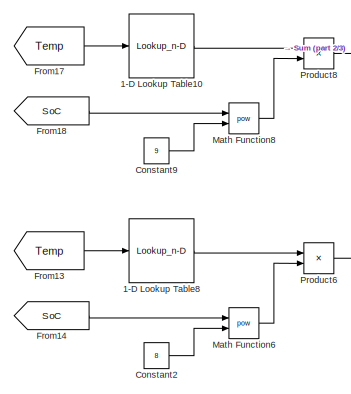
[diagram: Lithium-Sufur ECN Model (Cranfield University)/Voltage Drop Across Parallel RC Pair/Rp - all - part 1/3, top center region]
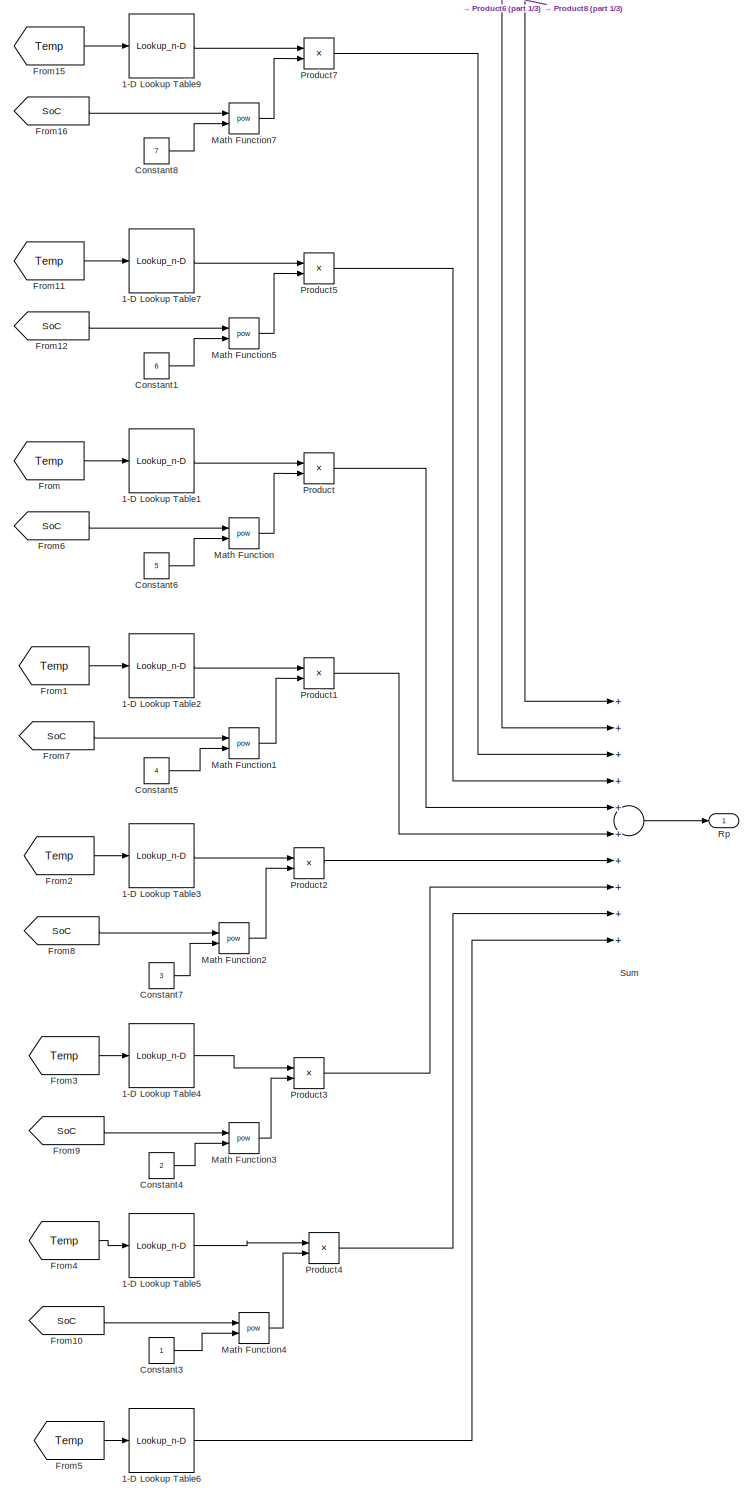
[diagram: Lithium-Sufur ECN Model (Cranfield University)/Voltage Drop Across Parallel RC Pair/Rp - all - part 2/3, most of the canvas]
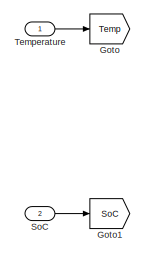
[diagram: Lithium-Sufur ECN Model (Cranfield University)/Voltage Drop Across Parallel RC Pair/Rp - all - part 3/3, bottom left region]
BLOCK [SubSystem] Lithium-Sufur ECN Model (Cranfield University)/Voltage Drop Across Parallel RC Pair/Rp - all
  Ports = [2, 1]
  RequestExecContextInheritance = off
  Variant = off
BLOCK [Lookup_n-D] Lithium-Sufur ECN Model (Cranfield University)/Voltage Drop Across Parallel RC Pair/Rp - all/1-D Lookup Table1
  BreakpointsForDimension1 = T
  InternalRulePriority = Speed
  NumberOfTableDimensions = 1
  Ports = [1, 1]
  RndMeth = Simplest
  Table = [R1_SOC_POLY20(5) ; R1_SOC_POLY30(5) ; R1_SOC_POLY50(5)]
BLOCK [Lookup_n-D] Lithium-Sufur ECN Model (Cranfield University)/Voltage Drop Across Parallel RC Pair/Rp - all/1-D Lookup Table10
  BreakpointsForDimension1 = T
  InternalRulePriority = Speed
  NumberOfTableDimensions = 1
  Ports = [1, 1]
  RndMeth = Simplest
  Table = [R1_SOC_POLY20(1) ; R1_SOC_POLY30(1) ; R1_SOC_POLY50(1)]
BLOCK [Lookup_n-D] Lithium-Sufur ECN Model (Cranfield University)/Voltage Drop Across Parallel RC Pair/Rp - all/1-D Lookup Table2
  BreakpointsForDimension1 = T
  InternalRulePriority = Speed
  NumberOfTableDimensions = 1
  Ports = [1, 1]
  RndMeth = Simplest
  Table = [R1_SOC_POLY20(6) ; R1_SOC_POLY30(6) ; R1_SOC_POLY50(6)]
BLOCK [Lookup_n-D] Lithium-Sufur ECN Model (Cranfield University)/Voltage Drop Across Parallel RC Pair/Rp - all/1-D Lookup Table3
  BreakpointsForDimension1 = T
  InternalRulePriority = Speed
  NumberOfTableDimensions = 1
  Ports = [1, 1]
  RndMeth = Simplest
  Table = [R1_SOC_POLY20(7) ; R1_SOC_POLY30(7) ; R1_SOC_POLY50(7)]
BLOCK [Lookup_n-D] Lithium-Sufur ECN Model (Cranfield University)/Voltage Drop Across Parallel RC Pair/Rp - all/1-D Lookup Table4
  BreakpointsForDimension1 = T
  InternalRulePriority = Speed
  NumberOfTableDimensions = 1
  Ports = [1, 1]
  RndMeth = Simplest
  Table = [R1_SOC_POLY20(8) ; R1_SOC_POLY30(8) ; R1_SOC_POLY50(8)]
BLOCK [Lookup_n-D] Lithium-Sufur ECN Model (Cranfield University)/Voltage Drop Across Parallel RC Pair/Rp - all/1-D Lookup Table5
  BreakpointsForDimension1 = T
  InternalRulePriority = Speed
  NumberOfTableDimensions = 1
  Ports = [1, 1]
  RndMeth = Simplest
  Table = [R1_SOC_POLY20(9) ; R1_SOC_POLY30(9) ; R1_SOC_POLY50(9)]
BLOCK [Lookup_n-D] Lithium-Sufur ECN Model (Cranfield University)/Voltage Drop Across Parallel RC Pair/Rp - all/1-D Lookup Table6
  BreakpointsForDimension1 = T
  InternalRulePriority = Speed
  NumberOfTableDimensions = 1
  Ports = [1, 1]
  RndMeth = Simplest
  Table = [R1_SOC_POLY20(10) ; R1_SOC_POLY30(10) ; R1_SOC_POLY50(10)]
BLOCK [Lookup_n-D] Lithium-Sufur ECN Model (Cranfield University)/Voltage Drop Across Parallel RC Pair/Rp - all/1-D Lookup Table7
  BreakpointsForDimension1 = T
  InternalRulePriority = Speed
  NumberOfTableDimensions = 1
  Ports = [1, 1]
  RndMeth = Simplest
  Table = [R1_SOC_POLY20(4) ; R1_SOC_POLY30(4) ; R1_SOC_POLY50(4)]
BLOCK [Lookup_n-D] Lithium-Sufur ECN Model (Cranfield University)/Voltage Drop Across Parallel RC Pair/Rp - all/1-D Lookup Table8
  BreakpointsForDimension1 = T
  InternalRulePriority = Speed
  NumberOfTableDimensions = 1
  Ports = [1, 1]
  RndMeth = Simplest
  Table = [R1_SOC_POLY20(2) ; R1_SOC_POLY30(2) ; R1_SOC_POLY50(2)]
BLOCK [Lookup_n-D] Lithium-Sufur ECN Model (Cranfield University)/Voltage Drop Across Parallel RC Pair/Rp - all/1-D Lookup Table9
  BreakpointsForDimension1 = T
  InternalRulePriority = Speed
  NumberOfTableDimensions = 1
  Ports = [1, 1]
  RndMeth = Simplest
  Table = [R1_SOC_POLY20(3) ; R1_SOC_POLY30(3) ; R1_SOC_POLY50(3)]
BLOCK [Constant] Lithium-Sufur ECN Model (Cranfield University)/Voltage Drop Across Parallel RC Pair/Rp - all/Constant1
  Value = 6
BLOCK [Constant] Lithium-Sufur ECN Model (Cranfield University)/Voltage Drop Across Parallel RC Pair/Rp - all/Constant2
  Value = 8
BLOCK [Constant] Lithium-Sufur ECN Model (Cranfield University)/Voltage Drop Across Parallel RC Pair/Rp - all/Constant3
BLOCK [Constant] Lithium-Sufur ECN Model (Cranfield University)/Voltage Drop Across Parallel RC Pair/Rp - all/Constant4
  Value = 2
BLOCK [Constant] Lithium-Sufur ECN Model (Cranfield University)/Voltage Drop Across Parallel RC Pair/Rp - all/Constant5
  Value = 4
BLOCK [Constant] Lithium-Sufur ECN Model (Cranfield University)/Voltage Drop Across Parallel RC Pair/Rp - all/Constant6
  Value = 5
BLOCK [Constant] Lithium-Sufur ECN Model (Cranfield University)/Voltage Drop Across Parallel RC Pair/Rp - all/Constant7
  Value = 3
BLOCK [Constant] Lithium-Sufur ECN Model (Cranfield University)/Voltage Drop Across Parallel RC Pair/Rp - all/Constant8
  Value = 7
BLOCK [Constant] Lithium-Sufur ECN Model (Cranfield University)/Voltage Drop Across Parallel RC Pair/Rp - all/Constant9
  Value = 9
BLOCK [From] Lithium-Sufur ECN Model (Cranfield University)/Voltage Drop Across Parallel RC Pair/Rp - all/From
  GotoTag = Temp
BLOCK [From] Lithium-Sufur ECN Model (Cranfield University)/Voltage Drop Across Parallel RC Pair/Rp - all/From1
  GotoTag = Temp
BLOCK [From] Lithium-Sufur ECN Model (Cranfield University)/Voltage Drop Across Parallel RC Pair/Rp - all/From10
  GotoTag = SoC
BLOCK [From] Lithium-Sufur ECN Model (Cranfield University)/Voltage Drop Across Parallel RC Pair/Rp - all/From11
  GotoTag = Temp
BLOCK [From] Lithium-Sufur ECN Model (Cranfield University)/Voltage Drop Across Parallel RC Pair/Rp - all/From12
  GotoTag = SoC
BLOCK [From] Lithium-Sufur ECN Model (Cranfield University)/Voltage Drop Across Parallel RC Pair/Rp - all/From13
  GotoTag = Temp
BLOCK [From] Lithium-Sufur ECN Model (Cranfield University)/Voltage Drop Across Parallel RC Pair/Rp - all/From14
  GotoTag = SoC
BLOCK [From] Lithium-Sufur ECN Model (Cranfield University)/Voltage Drop Across Parallel RC Pair/Rp - all/From15
  GotoTag = Temp
BLOCK [From] Lithium-Sufur ECN Model (Cranfield University)/Voltage Drop Across Parallel RC Pair/Rp - all/From16
  GotoTag = SoC
BLOCK [From] Lithium-Sufur ECN Model (Cranfield University)/Voltage Drop Across Parallel RC Pair/Rp - all/From17
  GotoTag = Temp
BLOCK [From] Lithium-Sufur ECN Model (Cranfield University)/Voltage Drop Across Parallel RC Pair/Rp - all/From18
  GotoTag = SoC
BLOCK [From] Lithium-Sufur ECN Model (Cranfield University)/Voltage Drop Across Parallel RC Pair/Rp - all/From2
  GotoTag = Temp
BLOCK [From] Lithium-Sufur ECN Model (Cranfield University)/Voltage Drop Across Parallel RC Pair/Rp - all/From3
  GotoTag = Temp
BLOCK [From] Lithium-Sufur ECN Model (Cranfield University)/Voltage Drop Across Parallel RC Pair/Rp - all/From4
  GotoTag = Temp
BLOCK [From] Lithium-Sufur ECN Model (Cranfield University)/Voltage Drop Across Parallel RC Pair/Rp - all/From5
  GotoTag = Temp
BLOCK [From] Lithium-Sufur ECN Model (Cranfield University)/Voltage Drop Across Parallel RC Pair/Rp - all/From6
  GotoTag = SoC
BLOCK [From] Lithium-Sufur ECN Model (Cranfield University)/Voltage Drop Across Parallel RC Pair/Rp - all/From7
  GotoTag = SoC
BLOCK [From] Lithium-Sufur ECN Model (Cranfield University)/Voltage Drop Across Parallel RC Pair/Rp - all/From8
  GotoTag = SoC
BLOCK [From] Lithium-Sufur ECN Model (Cranfield University)/Voltage Drop Across Parallel RC Pair/Rp - all/From9
  GotoTag = SoC
BLOCK [Goto] Lithium-Sufur ECN Model (Cranfield University)/Voltage Drop Across Parallel RC Pair/Rp - all/Goto
  GotoTag = Temp
BLOCK [Goto] Lithium-Sufur ECN Model (Cranfield University)/Voltage Drop Across Parallel RC Pair/Rp - all/Goto1
  GotoTag = SoC
BLOCK [Math] Lithium-Sufur ECN Model (Cranfield University)/Voltage Drop Across Parallel RC Pair/Rp - all/Math Function
  Operator = pow
  Ports = [2, 1]
BLOCK [Math] Lithium-Sufur ECN Model (Cranfield University)/Voltage Drop Across Parallel RC Pair/Rp - all/Math Function1
  Operator = pow
  Ports = [2, 1]
BLOCK [Math] Lithium-Sufur ECN Model (Cranfield University)/Voltage Drop Across Parallel RC Pair/Rp - all/Math Function2
  Operator = pow
  Ports = [2, 1]
BLOCK [Math] Lithium-Sufur ECN Model (Cranfield University)/Voltage Drop Across Parallel RC Pair/Rp - all/Math Function3
  Operator = pow
  Ports = [2, 1]
BLOCK [Math] Lithium-Sufur ECN Model (Cranfield University)/Voltage Drop Across Parallel RC Pair/Rp - all/Math Function4
  Operator = pow
  Ports = [2, 1]
BLOCK [Math] Lithium-Sufur ECN Model (Cranfield University)/Voltage Drop Across Parallel RC Pair/Rp - all/Math Function5
  Operator = pow
  Ports = [2, 1]
BLOCK [Math] Lithium-Sufur ECN Model (Cranfield University)/Voltage Drop Across Parallel RC Pair/Rp - all/Math Function6
  Operator = pow
  Ports = [2, 1]
BLOCK [Math] Lithium-Sufur ECN Model (Cranfield University)/Voltage Drop Across Parallel RC Pair/Rp - all/Math Function7
  Operator = pow
  Ports = [2, 1]
BLOCK [Math] Lithium-Sufur ECN Model (Cranfield University)/Voltage Drop Across Parallel RC Pair/Rp - all/Math Function8
  Operator = pow
  Ports = [2, 1]
BLOCK [Product] Lithium-Sufur ECN Model (Cranfield University)/Voltage Drop Across Parallel RC Pair/Rp - all/Product
  InputSameDT = off
  OutDataTypeStr = Inherit: Inherit via internal rule
  Ports = [2, 1]
  RndMeth = Floor
  SaturateOnIntegerOverflow = off
BLOCK [Product] Lithium-Sufur ECN Model (Cranfield University)/Voltage Drop Across Parallel RC Pair/Rp - all/Product1
  InputSameDT = off
  OutDataTypeStr = Inherit: Inherit via internal rule
  Ports = [2, 1]
  RndMeth = Floor
  SaturateOnIntegerOverflow = off
BLOCK [Product] Lithium-Sufur ECN Model (Cranfield University)/Voltage Drop Across Parallel RC Pair/Rp - all/Product2
  InputSameDT = off
  OutDataTypeStr = Inherit: Inherit via internal rule
  Ports = [2, 1]
  RndMeth = Floor
  SaturateOnIntegerOverflow = off
BLOCK [Product] Lithium-Sufur ECN Model (Cranfield University)/Voltage Drop Across Parallel RC Pair/Rp - all/Product3
  InputSameDT = off
  OutDataTypeStr = Inherit: Inherit via internal rule
  Ports = [2, 1]
  RndMeth = Floor
  SaturateOnIntegerOverflow = off
BLOCK [Product] Lithium-Sufur ECN Model (Cranfield University)/Voltage Drop Across Parallel RC Pair/Rp - all/Product4
  InputSameDT = off
  OutDataTypeStr = Inherit: Inherit via internal rule
  Ports = [2, 1]
  RndMeth = Floor
  SaturateOnIntegerOverflow = off
BLOCK [Product] Lithium-Sufur ECN Model (Cranfield University)/Voltage Drop Across Parallel RC Pair/Rp - all/Product5
  InputSameDT = off
  OutDataTypeStr = Inherit: Inherit via internal rule
  Ports = [2, 1]
  RndMeth = Floor
  SaturateOnIntegerOverflow = off
BLOCK [Product] Lithium-Sufur ECN Model (Cranfield University)/Voltage Drop Across Parallel RC Pair/Rp - all/Product6
  InputSameDT = off
  OutDataTypeStr = Inherit: Inherit via internal rule
  Ports = [2, 1]
  RndMeth = Floor
  SaturateOnIntegerOverflow = off
BLOCK [Product] Lithium-Sufur ECN Model (Cranfield University)/Voltage Drop Across Parallel RC Pair/Rp - all/Product7
  InputSameDT = off
  OutDataTypeStr = Inherit: Inherit via internal rule
  Ports = [2, 1]
  RndMeth = Floor
  SaturateOnIntegerOverflow = off
BLOCK [Product] Lithium-Sufur ECN Model (Cranfield University)/Voltage Drop Across Parallel RC Pair/Rp - all/Product8
  InputSameDT = off
  OutDataTypeStr = Inherit: Inherit via internal rule
  Ports = [2, 1]
  RndMeth = Floor
  SaturateOnIntegerOverflow = off
BLOCK [Outport] Lithium-Sufur ECN Model (Cranfield University)/Voltage Drop Across Parallel RC Pair/Rp - all/Rp 
  IconDisplay = Port number
BLOCK [Inport] Lithium-Sufur ECN Model (Cranfield University)/Voltage Drop Across Parallel RC Pair/Rp - all/SoC
  IconDisplay = Port number
  Port = 2
BLOCK [Sum] Lithium-Sufur ECN Model (Cranfield University)/Voltage Drop Across Parallel RC Pair/Rp - all/Sum
  InputSameDT = off
  Inputs = ++++++++++
  OutDataTypeStr = Inherit: Inherit via internal rule
  Ports = [10, 1]
  SaturateOnIntegerOverflow = off
BLOCK [Inport] Lithium-Sufur ECN Model (Cranfield University)/Voltage Drop Across Parallel RC Pair/Rp - all/Temperature
  IconDisplay = Port number
BLOCK [Inport] Lithium-Sufur ECN Model (Cranfield University)/Voltage Drop Across Parallel RC Pair/SOC
  IconDisplay = Port number
BLOCK [Saturate] Lithium-Sufur ECN Model (Cranfield University)/Voltage Drop Across Parallel RC Pair/Saturation
  InputPortMap = u0
  LowerLimit = 0.0001
  Ports = [1, 1]
  UpperLimit = inf
BLOCK [Saturate] Lithium-Sufur ECN Model (Cranfield University)/Voltage Drop Across Parallel RC Pair/Saturation1
  InputPortMap = u0
  LowerLimit = 10
  Ports = [1, 1]
  UpperLimit = 50000
BLOCK [Sum] Lithium-Sufur ECN Model (Cranfield University)/Voltage Drop Across Parallel RC Pair/Sum
  IconShape = round
  InputSameDT = off
  Inputs = |+-
  OutDataTypeStr = Inherit: Inherit via internal rule
  Ports = [2, 1]
  SaturateOnIntegerOverflow = off
BLOCK [Inport] Lithium-Sufur ECN Model (Cranfield University)/Voltage Drop Across Parallel RC Pair/Temperature
  IconDisplay = Port number
  Port = 3
BLOCK [Outport] Lithium-Sufur ECN Model (Cranfield University)/Voltage Drop Across Parallel RC Pair/V_C1
  IconDisplay = Port number
BLOCK [SubSystem] Lithium-Sufur ECN Model (Cranfield University)/Voltage Drop Across Resistor
  Ports = [3, 1]
  RequestExecContextInheritance = off
  Variant = off
BLOCK [Inport] Lithium-Sufur ECN Model (Cranfield University)/Voltage Drop Across Resistor/Current
  IconDisplay = Port number
  Port = 2
BLOCK [Product] Lithium-Sufur ECN Model (Cranfield University)/Voltage Drop Across Resistor/Product
  InputSameDT = off
  OutDataTypeStr = Inherit: Inherit via internal rule
  Ports = [2, 1]
  RndMeth = Floor
  SaturateOnIntegerOverflow = off
BLOCK [SubSystem] Lithium-Sufur ECN Model (Cranfield University)/Voltage Drop Across Resistor/Ri - All
  Ports = [2, 1]
  RequestExecContextInheritance = off
  Variant = off
BLOCK [Lookup_n-D] Lithium-Sufur ECN Model (Cranfield University)/Voltage Drop Across Resistor/Ri - All/1-D Lookup Table
  BreakpointsForDimension1 = Tempstrech
  InternalRulePriority = Speed
  NumberOfTableDimensions = 1
  Ports = [1, 1]
  RndMeth = Simplest
  Table = StrechFactors
BLOCK [Lookup_n-D] Lithium-Sufur ECN Model (Cranfield University)/Voltage Drop Across Resistor/Ri - All/1-D Lookup Table2
  BreakpointsForDimension1 = Temp'
  InternalRulePriority = Speed
  NumberOfTableDimensions = 1
  Ports = [1, 1]
  RndMeth = Simplest
  Table = C_man
BLOCK [From] Lithium-Sufur ECN Model (Cranfield University)/Voltage Drop Across Resistor/Ri - All/From
  GotoTag = SOC
BLOCK [From] Lithium-Sufur ECN Model (Cranfield University)/Voltage Drop Across Resistor/Ri - All/From1
  GotoTag = SOC
BLOCK [From] Lithium-Sufur ECN Model (Cranfield University)/Voltage Drop Across Resistor/Ri - All/From2
  GotoTag = SOC
BLOCK [From] Lithium-Sufur ECN Model (Cranfield University)/Voltage Drop Across Resistor/Ri - All/From3
  GotoTag = Temp
BLOCK [From] Lithium-Sufur ECN Model (Cranfield University)/Voltage Drop Across Resistor/Ri - All/From4
  GotoTag = Temp
BLOCK [From] Lithium-Sufur ECN Model (Cranfield University)/Voltage Drop Across Resistor/Ri - All/From5
  GotoTag = Temp
BLOCK [From] Lithium-Sufur ECN Model (Cranfield University)/Voltage Drop Across Resistor/Ri - All/From6
  GotoTag = Temp
BLOCK [Goto] Lithium-Sufur ECN Model (Cranfield University)/Voltage Drop Across Resistor/Ri - All/Goto
  GotoTag = SOC
BLOCK [Goto] Lithium-Sufur ECN Model (Cranfield University)/Voltage Drop Across Resistor/Ri - All/Goto1
  GotoTag = Temp
BLOCK [SubSystem] Lithium-Sufur ECN Model (Cranfield University)/Voltage Drop Across Resistor/Ri - All/MATLAB Function
  ErrorFcn = Stateflow.Translate.translate
  PermitHierarchicalResolution = ExplicitOnly
  Ports = [4, 1]
  RequestExecContextInheritance = off
  SFBlockType = MATLAB Function
  TreatAsAtomicUnit = on
  Variant = off
BLOCK [Demux] Lithium-Sufur ECN Model (Cranfield University)/Voltage Drop Across Resistor/Ri - All/MATLAB Function/ Demux 
  Outputs = 1
  Ports = [1, 1]
BLOCK [S-Function] Lithium-Sufur ECN Model (Cranfield University)/Voltage Drop Across Resistor/Ri - All/MATLAB Function/ SFunction 
  EnableBusSupport = on
  FunctionName = sf_sfun
  PortCounts = [4 2]
  Ports = [4, 2]
  SFunctionDeploymentMode = off
  Tag = Stateflow S-Function LiS_ECN_Model_lib 1
BLOCK [Terminator] Lithium-Sufur ECN Model (Cranfield University)/Voltage Drop Across Resistor/Ri - All/MATLAB Function/ Terminator 
BLOCK [Inport] Lithium-Sufur ECN Model (Cranfield University)/Voltage Drop Across Resistor/Ri - All/MATLAB Function/CC
  IconDisplay = Port number
  Port = 2
BLOCK [Outport] Lithium-Sufur ECN Model (Cranfield University)/Voltage Drop Across Resistor/Ri - All/MATLAB Function/Ri_all
  IconDisplay = Port number
BLOCK [Inport] Lithium-Sufur ECN Model (Cranfield University)/Voltage Drop Across Resistor/Ri - All/MATLAB Function/Ri_high
  IconDisplay = Port number
BLOCK [Inport] Lithium-Sufur ECN Model (Cranfield University)/Voltage Drop Across Resistor/Ri - All/MATLAB Function/Ri_low
  IconDisplay = Port number
  Port = 4
BLOCK [Inport] Lithium-Sufur ECN Model (Cranfield University)/Voltage Drop Across Resistor/Ri - All/MATLAB Function/SOC
  IconDisplay = Port number
  Port = 3
BLOCK [Product] Lithium-Sufur ECN Model (Cranfield University)/Voltage Drop Across Resistor/Ri - All/Product
  InputSameDT = off
  OutDataTypeStr = Inherit: Inherit via internal rule
  Ports = [2, 1]
  RndMeth = Floor
  SaturateOnIntegerOverflow = off
BLOCK [SubSystem] Lithium-Sufur ECN Model (Cranfield University)/Voltage Drop Across Resistor/Ri - All/R0 - Low
  Ports = [2, 1]
  RequestExecContextInheritance = off
  Variant = off
BLOCK [Lookup_n-D] Lithium-Sufur ECN Model (Cranfield University)/Voltage Drop Across Resistor/Ri - All/R0 - Low/1-D Lookup Table1
  BreakpointsForDimension1 = T
  InternalRulePriority = Speed
  NumberOfTableDimensions = 1
  Ports = [1, 1]
  RndMeth = Simplest
  Table = [Ri_POLYlow20(2) ; Ri_POLYlow30(2) ; Ri_POLYlow50(2)]
BLOCK [Lookup_n-D] Lithium-Sufur ECN Model (Cranfield University)/Voltage Drop Across Resistor/Ri - All/R0 - Low/1-D Lookup Table2
  BreakpointsForDimension1 = T
  InternalRulePriority = Speed
  NumberOfTableDimensions = 1
  Ports = [1, 1]
  RndMeth = Simplest
  Table = [Ri_POLYlow20(3) ; Ri_POLYlow30(3) ; Ri_POLYlow50(3)]
BLOCK [Lookup_n-D] Lithium-Sufur ECN Model (Cranfield University)/Voltage Drop Across Resistor/Ri - All/R0 - Low/1-D Lookup Table3
  BreakpointsForDimension1 = T
  InternalRulePriority = Speed
  NumberOfTableDimensions = 1
  Ports = [1, 1]
  RndMeth = Simplest
  Table = [Ri_POLYlow20(4) ; Ri_POLYlow30(4) ; Ri_POLYlow50(4)]
BLOCK [Lookup_n-D] Lithium-Sufur ECN Model (Cranfield University)/Voltage Drop Across Resistor/Ri - All/R0 - Low/1-D Lookup Table4
  BreakpointsForDimension1 = T
  InternalRulePriority = Speed
  NumberOfTableDimensions = 1
  Ports = [1, 1]
  RndMeth = Simplest
  Table = [Ri_POLYlow20(5) ; Ri_POLYlow30(5) ; Ri_POLYlow50(5)]
BLOCK [Lookup_n-D] Lithium-Sufur ECN Model (Cranfield University)/Voltage Drop Across Resistor/Ri - All/R0 - Low/1-D Lookup Table5
  BreakpointsForDimension1 = T
  InternalRulePriority = Speed
  NumberOfTableDimensions = 1
  Ports = [1, 1]
  RndMeth = Simplest
  Table = [Ri_POLYlow20(6) ; Ri_POLYlow30(6) ; Ri_POLYlow50(6)]
BLOCK [Lookup_n-D] Lithium-Sufur ECN Model (Cranfield University)/Voltage Drop Across Resistor/Ri - All/R0 - Low/1-D Lookup Table6
  BreakpointsForDimension1 = T
  InternalRulePriority = Speed
  NumberOfTableDimensions = 1
  Ports = [1, 1]
  RndMeth = Simplest
  Table = [Ri_POLYlow20(7) ; Ri_POLYlow30(7) ; Ri_POLYlow50(7)]
BLOCK [Lookup_n-D] Lithium-Sufur ECN Model (Cranfield University)/Voltage Drop Across Resistor/Ri - All/R0 - Low/1-D Lookup Table7
  BreakpointsForDimension1 = T
  InternalRulePriority = Speed
  NumberOfTableDimensions = 1
  Ports = [1, 1]
  RndMeth = Simplest
  Table = [Ri_POLYlow20(1) ; Ri_POLYlow30(1) ; Ri_POLYlow50(1)]
BLOCK [Constant] Lithium-Sufur ECN Model (Cranfield University)/Voltage Drop Across Resistor/Ri - All/R0 - Low/Constant1
  Value = 5
BLOCK [Constant] Lithium-Sufur ECN Model (Cranfield University)/Voltage Drop Across Resistor/Ri - All/R0 - Low/Constant2
  Value = 6
BLOCK [Constant] Lithium-Sufur ECN Model (Cranfield University)/Voltage Drop Across Resistor/Ri - All/R0 - Low/Constant3
BLOCK [Constant] Lithium-Sufur ECN Model (Cranfield University)/Voltage Drop Across Resistor/Ri - All/R0 - Low/Constant4
  Value = 2
BLOCK [Constant] Lithium-Sufur ECN Model (Cranfield University)/Voltage Drop Across Resistor/Ri - All/R0 - Low/Constant5
  Value = 4
BLOCK [Constant] Lithium-Sufur ECN Model (Cranfield University)/Voltage Drop Across Resistor/Ri - All/R0 - Low/Constant7
  Value = 3
BLOCK [From] Lithium-Sufur ECN Model (Cranfield University)/Voltage Drop Across Resistor/Ri - All/R0 - Low/From1
  GotoTag = Temp
BLOCK [From] Lithium-Sufur ECN Model (Cranfield University)/Voltage Drop Across Resistor/Ri - All/R0 - Low/From10
  GotoTag = SoC
BLOCK [From] Lithium-Sufur ECN Model (Cranfield University)/Voltage Drop Across Resistor/Ri - All/R0 - Low/From11
  GotoTag = SoC
BLOCK [From] Lithium-Sufur ECN Model (Cranfield University)/Voltage Drop Across Resistor/Ri - All/R0 - Low/From12
  GotoTag = SoC
BLOCK [From] Lithium-Sufur ECN Model (Cranfield University)/Voltage Drop Across Resistor/Ri - All/R0 - Low/From13
  GotoTag = Temp
BLOCK [From] Lithium-Sufur ECN Model (Cranfield University)/Voltage Drop Across Resistor/Ri - All/R0 - Low/From2
  GotoTag = Temp
BLOCK [From] Lithium-Sufur ECN Model (Cranfield University)/Voltage Drop Across Resistor/Ri - All/R0 - Low/From3
  GotoTag = Temp
BLOCK [From] Lithium-Sufur ECN Model (Cranfield University)/Voltage Drop Across Resistor/Ri - All/R0 - Low/From4
  GotoTag = Temp
BLOCK [From] Lithium-Sufur ECN Model (Cranfield University)/Voltage Drop Across Resistor/Ri - All/R0 - Low/From5
  GotoTag = Temp
BLOCK [From] Lithium-Sufur ECN Model (Cranfield University)/Voltage Drop Across Resistor/Ri - All/R0 - Low/From6
  GotoTag = Temp
BLOCK [From] Lithium-Sufur ECN Model (Cranfield University)/Voltage Drop Across Resistor/Ri - All/R0 - Low/From7
  GotoTag = SoC
BLOCK [From] Lithium-Sufur ECN Model (Cranfield University)/Voltage Drop Across Resistor/Ri - All/R0 - Low/From8
  GotoTag = SoC
BLOCK [From] Lithium-Sufur ECN Model (Cranfield University)/Voltage Drop Across Resistor/Ri - All/R0 - Low/From9
  GotoTag = SoC
BLOCK [Goto] Lithium-Sufur ECN Model (Cranfield University)/Voltage Drop Across Resistor/Ri - All/R0 - Low/Goto
  GotoTag = Temp
BLOCK [Goto] Lithium-Sufur ECN Model (Cranfield University)/Voltage Drop Across Resistor/Ri - All/R0 - Low/Goto1
  GotoTag = SoC
BLOCK [Math] Lithium-Sufur ECN Model (Cranfield University)/Voltage Drop Across Resistor/Ri - All/R0 - Low/Math Function1
  Operator = pow
  Ports = [2, 1]
BLOCK [Math] Lithium-Sufur ECN Model (Cranfield University)/Voltage Drop Across Resistor/Ri - All/R0 - Low/Math Function2
  Operator = pow
  Ports = [2, 1]
BLOCK [Math] Lithium-Sufur ECN Model (Cranfield University)/Voltage Drop Across Resistor/Ri - All/R0 - Low/Math Function3
  Operator = pow
  Ports = [2, 1]
BLOCK [Math] Lithium-Sufur ECN Model (Cranfield University)/Voltage Drop Across Resistor/Ri - All/R0 - Low/Math Function4
  Operator = pow
  Ports = [2, 1]
BLOCK [Math] Lithium-Sufur ECN Model (Cranfield University)/Voltage Drop Across Resistor/Ri - All/R0 - Low/Math Function5
  Operator = pow
  Ports = [2, 1]
BLOCK [Math] Lithium-Sufur ECN Model (Cranfield University)/Voltage Drop Across Resistor/Ri - All/R0 - Low/Math Function6
  Operator = pow
  Ports = [2, 1]
BLOCK [Product] Lithium-Sufur ECN Model (Cranfield University)/Voltage Drop Across Resistor/Ri - All/R0 - Low/Product1
  InputSameDT = off
  OutDataTypeStr = Inherit: Inherit via internal rule
  Ports = [2, 1]
  RndMeth = Floor
  SaturateOnIntegerOverflow = off
BLOCK [Product] Lithium-Sufur ECN Model (Cranfield University)/Voltage Drop Across Resistor/Ri - All/R0 - Low/Product2
  InputSameDT = off
  OutDataTypeStr = Inherit: Inherit via internal rule
  Ports = [2, 1]
  RndMeth = Floor
  SaturateOnIntegerOverflow = off
BLOCK [Product] Lithium-Sufur ECN Model (Cranfield University)/Voltage Drop Across Resistor/Ri - All/R0 - Low/Product3
  InputSameDT = off
  OutDataTypeStr = Inherit: Inherit via internal rule
  Ports = [2, 1]
  RndMeth = Floor
  SaturateOnIntegerOverflow = off
BLOCK [Product] Lithium-Sufur ECN Model (Cranfield University)/Voltage Drop Across Resistor/Ri - All/R0 - Low/Product4
  InputSameDT = off
  OutDataTypeStr = Inherit: Inherit via internal rule
  Ports = [2, 1]
  RndMeth = Floor
  SaturateOnIntegerOverflow = off
BLOCK [Product] Lithium-Sufur ECN Model (Cranfield University)/Voltage Drop Across Resistor/Ri - All/R0 - Low/Product5
  InputSameDT = off
  OutDataTypeStr = Inherit: Inherit via internal rule
  Ports = [2, 1]
  RndMeth = Floor
  SaturateOnIntegerOverflow = off
BLOCK [Product] Lithium-Sufur ECN Model (Cranfield University)/Voltage Drop Across Resistor/Ri - All/R0 - Low/Product6
  InputSameDT = off
  OutDataTypeStr = Inherit: Inherit via internal rule
  Ports = [2, 1]
  RndMeth = Floor
  SaturateOnIntegerOverflow = off
BLOCK [Outport] Lithium-Sufur ECN Model (Cranfield University)/Voltage Drop Across Resistor/Ri - All/R0 - Low/R0_low 
  IconDisplay = Port number
BLOCK [Inport] Lithium-Sufur ECN Model (Cranfield University)/Voltage Drop Across Resistor/Ri - All/R0 - Low/SoC
  IconDisplay = Port number
  Port = 2
BLOCK [Sum] Lithium-Sufur ECN Model (Cranfield University)/Voltage Drop Across Resistor/Ri - All/R0 - Low/Sum
  InputSameDT = off
  Inputs = +++++++
  OutDataTypeStr = Inherit: Inherit via internal rule
  Ports = [7, 1]
  SaturateOnIntegerOverflow = off
BLOCK [Inport] Lithium-Sufur ECN Model (Cranfield University)/Voltage Drop Across Resistor/Ri - All/R0 - Low/Temperature
  IconDisplay = Port number
BLOCK [SubSystem] Lithium-Sufur ECN Model (Cranfield University)/Voltage Drop Across Resistor/Ri - All/R0 - high
  Ports = [2, 1]
  RequestExecContextInheritance = off
  Variant = off
BLOCK [Lookup_n-D] Lithium-Sufur ECN Model (Cranfield University)/Voltage Drop Across Resistor/Ri - All/R0 - high/1-D Lookup Table1
  BreakpointsForDimension1 = T
  InternalRulePriority = Speed
  NumberOfTableDimensions = 1
  Ports = [1, 1]
  RndMeth = Simplest
  Table = [Ri_POLYhigh20(2) ; Ri_POLYhigh30(2) ; Ri_POLYhigh50(2)]
BLOCK [Lookup_n-D] Lithium-Sufur ECN Model (Cranfield University)/Voltage Drop Across Resistor/Ri - All/R0 - high/1-D Lookup Table2
  BreakpointsForDimension1 = T
  InternalRulePriority = Speed
  NumberOfTableDimensions = 1
  Ports = [1, 1]
  RndMeth = Simplest
  Table = [Ri_POLYhigh20(3) ; Ri_POLYhigh30(3) ; Ri_POLYhigh50(3)]
BLOCK [Lookup_n-D] Lithium-Sufur ECN Model (Cranfield University)/Voltage Drop Across Resistor/Ri - All/R0 - high/1-D Lookup Table3
  BreakpointsForDimension1 = T
  InternalRulePriority = Speed
  NumberOfTableDimensions = 1
  Ports = [1, 1]
  RndMeth = Simplest
  Table = [Ri_POLYhigh20(4) ; Ri_POLYhigh30(4) ; Ri_POLYhigh50(4)]
BLOCK [Lookup_n-D] Lithium-Sufur ECN Model (Cranfield University)/Voltage Drop Across Resistor/Ri - All/R0 - high/1-D Lookup Table4
  BreakpointsForDimension1 = T
  InternalRulePriority = Speed
  NumberOfTableDimensions = 1
  Ports = [1, 1]
  RndMeth = Simplest
  Table = [Ri_POLYhigh20(5) ; Ri_POLYhigh30(5) ; Ri_POLYhigh50(5)]
BLOCK [Lookup_n-D] Lithium-Sufur ECN Model (Cranfield University)/Voltage Drop Across Resistor/Ri - All/R0 - high/1-D Lookup Table5
  BreakpointsForDimension1 = T
  InternalRulePriority = Speed
  NumberOfTableDimensions = 1
  Ports = [1, 1]
  RndMeth = Simplest
  Table = [Ri_POLYhigh20(6) ; Ri_POLYhigh30(6) ; Ri_POLYhigh50(6)]
BLOCK [Lookup_n-D] Lithium-Sufur ECN Model (Cranfield University)/Voltage Drop Across Resistor/Ri - All/R0 - high/1-D Lookup Table6
  BreakpointsForDimension1 = T
  InternalRulePriority = Speed
  NumberOfTableDimensions = 1
  Ports = [1, 1]
  RndMeth = Simplest
  Table = [Ri_POLYhigh20(7) ; Ri_POLYhigh30(7) ; Ri_POLYhigh50(7)]
BLOCK [Lookup_n-D] Lithium-Sufur ECN Model (Cranfield University)/Voltage Drop Across Resistor/Ri - All/R0 - high/1-D Lookup Table7
  BreakpointsForDimension1 = T
  InternalRulePriority = Speed
  NumberOfTableDimensions = 1
  Ports = [1, 1]
  RndMeth = Simplest
  Table = [Ri_POLYhigh20(1) ; Ri_POLYhigh30(1) ; Ri_POLYhigh50(1)]
BLOCK [Constant] Lithium-Sufur ECN Model (Cranfield University)/Voltage Drop Across Resistor/Ri - All/R0 - high/Constant1
  Value = 5
BLOCK [Constant] Lithium-Sufur ECN Model (Cranfield University)/Voltage Drop Across Resistor/Ri - All/R0 - high/Constant2
  Value = 6
BLOCK [Constant] Lithium-Sufur ECN Model (Cranfield University)/Voltage Drop Across Resistor/Ri - All/R0 - high/Constant3
BLOCK [Constant] Lithium-Sufur ECN Model (Cranfield University)/Voltage Drop Across Resistor/Ri - All/R0 - high/Constant4
  Value = 2
BLOCK [Constant] Lithium-Sufur ECN Model (Cranfield University)/Voltage Drop Across Resistor/Ri - All/R0 - high/Constant5
  Value = 4
BLOCK [Constant] Lithium-Sufur ECN Model (Cranfield University)/Voltage Drop Across Resistor/Ri - All/R0 - high/Constant7
  Value = 3
BLOCK [From] Lithium-Sufur ECN Model (Cranfield University)/Voltage Drop Across Resistor/Ri - All/R0 - high/From1
  GotoTag = Temp
BLOCK [From] Lithium-Sufur ECN Model (Cranfield University)/Voltage Drop Across Resistor/Ri - All/R0 - high/From10
  GotoTag = SoC
BLOCK [From] Lithium-Sufur ECN Model (Cranfield University)/Voltage Drop Across Resistor/Ri - All/R0 - high/From11
  GotoTag = SoC
BLOCK [From] Lithium-Sufur ECN Model (Cranfield University)/Voltage Drop Across Resistor/Ri - All/R0 - high/From12
  GotoTag = SoC
BLOCK [From] Lithium-Sufur ECN Model (Cranfield University)/Voltage Drop Across Resistor/Ri - All/R0 - high/From13
  GotoTag = Temp
BLOCK [From] Lithium-Sufur ECN Model (Cranfield University)/Voltage Drop Across Resistor/Ri - All/R0 - high/From2
  GotoTag = Temp
BLOCK [From] Lithium-Sufur ECN Model (Cranfield University)/Voltage Drop Across Resistor/Ri - All/R0 - high/From3
  GotoTag = Temp
BLOCK [From] Lithium-Sufur ECN Model (Cranfield University)/Voltage Drop Across Resistor/Ri - All/R0 - high/From4
  GotoTag = Temp
BLOCK [From] Lithium-Sufur ECN Model (Cranfield University)/Voltage Drop Across Resistor/Ri - All/R0 - high/From5
  GotoTag = Temp
BLOCK [From] Lithium-Sufur ECN Model (Cranfield University)/Voltage Drop Across Resistor/Ri - All/R0 - high/From6
  GotoTag = Temp
BLOCK [From] Lithium-Sufur ECN Model (Cranfield University)/Voltage Drop Across Resistor/Ri - All/R0 - high/From7
  GotoTag = SoC
BLOCK [From] Lithium-Sufur ECN Model (Cranfield University)/Voltage Drop Across Resistor/Ri - All/R0 - high/From8
  GotoTag = SoC
BLOCK [From] Lithium-Sufur ECN Model (Cranfield University)/Voltage Drop Across Resistor/Ri - All/R0 - high/From9
  GotoTag = SoC
BLOCK [Goto] Lithium-Sufur ECN Model (Cranfield University)/Voltage Drop Across Resistor/Ri - All/R0 - high/Goto
  GotoTag = Temp
BLOCK [Goto] Lithium-Sufur ECN Model (Cranfield University)/Voltage Drop Across Resistor/Ri - All/R0 - high/Goto1
  GotoTag = SoC
BLOCK [Math] Lithium-Sufur ECN Model (Cranfield University)/Voltage Drop Across Resistor/Ri - All/R0 - high/Math Function1
  Operator = pow
  Ports = [2, 1]
BLOCK [Math] Lithium-Sufur ECN Model (Cranfield University)/Voltage Drop Across Resistor/Ri - All/R0 - high/Math Function2
  Operator = pow
  Ports = [2, 1]
BLOCK [Math] Lithium-Sufur ECN Model (Cranfield University)/Voltage Drop Across Resistor/Ri - All/R0 - high/Math Function3
  Operator = pow
  Ports = [2, 1]
BLOCK [Math] Lithium-Sufur ECN Model (Cranfield University)/Voltage Drop Across Resistor/Ri - All/R0 - high/Math Function4
  Operator = pow
  Ports = [2, 1]
BLOCK [Math] Lithium-Sufur ECN Model (Cranfield University)/Voltage Drop Across Resistor/Ri - All/R0 - high/Math Function5
  Operator = pow
  Ports = [2, 1]
BLOCK [Math] Lithium-Sufur ECN Model (Cranfield University)/Voltage Drop Across Resistor/Ri - All/R0 - high/Math Function6
  Operator = pow
  Ports = [2, 1]
BLOCK [Product] Lithium-Sufur ECN Model (Cranfield University)/Voltage Drop Across Resistor/Ri - All/R0 - high/Product1
  InputSameDT = off
  OutDataTypeStr = Inherit: Inherit via internal rule
  Ports = [2, 1]
  RndMeth = Floor
  SaturateOnIntegerOverflow = off
BLOCK [Product] Lithium-Sufur ECN Model (Cranfield University)/Voltage Drop Across Resistor/Ri - All/R0 - high/Product2
  InputSameDT = off
  OutDataTypeStr = Inherit: Inherit via internal rule
  Ports = [2, 1]
  RndMeth = Floor
  SaturateOnIntegerOverflow = off
BLOCK [Product] Lithium-Sufur ECN Model (Cranfield University)/Voltage Drop Across Resistor/Ri - All/R0 - high/Product3
  InputSameDT = off
  OutDataTypeStr = Inherit: Inherit via internal rule
  Ports = [2, 1]
  RndMeth = Floor
  SaturateOnIntegerOverflow = off
BLOCK [Product] Lithium-Sufur ECN Model (Cranfield University)/Voltage Drop Across Resistor/Ri - All/R0 - high/Product4
  InputSameDT = off
  OutDataTypeStr = Inherit: Inherit via internal rule
  Ports = [2, 1]
  RndMeth = Floor
  SaturateOnIntegerOverflow = off
BLOCK [Product] Lithium-Sufur ECN Model (Cranfield University)/Voltage Drop Across Resistor/Ri - All/R0 - high/Product5
  InputSameDT = off
  OutDataTypeStr = Inherit: Inherit via internal rule
  Ports = [2, 1]
  RndMeth = Floor
  SaturateOnIntegerOverflow = off
BLOCK [Product] Lithium-Sufur ECN Model (Cranfield University)/Voltage Drop Across Resistor/Ri - All/R0 - high/Product6
  InputSameDT = off
  OutDataTypeStr = Inherit: Inherit via internal rule
  Ports = [2, 1]
  RndMeth = Floor
  SaturateOnIntegerOverflow = off
BLOCK [Outport] Lithium-Sufur ECN Model (Cranfield University)/Voltage Drop Across Resistor/Ri - All/R0 - high/R0_high 
  IconDisplay = Port number
BLOCK [Inport] Lithium-Sufur ECN Model (Cranfield University)/Voltage Drop Across Resistor/Ri - All/R0 - high/SoC
  IconDisplay = Port number
  Port = 2
BLOCK [Sum] Lithium-Sufur ECN Model (Cranfield University)/Voltage Drop Across Resistor/Ri - All/R0 - high/Sum
  InputSameDT = off
  Inputs = +++++++
  OutDataTypeStr = Inherit: Inherit via internal rule
  Ports = [7, 1]
  SaturateOnIntegerOverflow = off
BLOCK [Inport] Lithium-Sufur ECN Model (Cranfield University)/Voltage Drop Across Resistor/Ri - All/R0 - high/Temperature
  IconDisplay = Port number
BLOCK [Outport] Lithium-Sufur ECN Model (Cranfield University)/Voltage Drop Across Resistor/Ri - All/Ri all
  IconDisplay = Port number
BLOCK [Inport] Lithium-Sufur ECN Model (Cranfield University)/Voltage Drop Across Resistor/Ri - All/SoC
  IconDisplay = Port number
BLOCK [Inport] Lithium-Sufur ECN Model (Cranfield University)/Voltage Drop Across Resistor/Ri - All/Temp1
  IconDisplay = Port number
  Port = 2
BLOCK [Inport] Lithium-Sufur ECN Model (Cranfield University)/Voltage Drop Across Resistor/SOC
  IconDisplay = Port number
BLOCK [Inport] Lithium-Sufur ECN Model (Cranfield University)/Voltage Drop Across Resistor/Temp
  IconDisplay = Port number
  Port = 3
BLOCK [Outport] Lithium-Sufur ECN Model (Cranfield University)/Voltage Drop Across Resistor/V Rint
  IconDisplay = Port number
BLOCK [Outport] Lithium-Sufur ECN Model (Cranfield University)/m
  AttributesFormatString = SampleTime=%<SampleTime>
  IconDisplay = Port number
  SampleTime = Ts
ANNOTATION Lithium-Sufur ECN Model (Cranfield University): This is Cranfield University's Equivalent Circuit Network Model for an OXIS Energy lithium-sulfur cell. It has been prepared in conjunction with the paper 'Multi- temperature state-dependent equivalent circuit discharge model for lithium-sulfur batteries' accepted by the Journal of Power Sources onJuly 23, 2016, http://dx.doi.org/10.1016/j.jpowsour.2016.07.090. Please reference this paper if you u...<+103ch>
ANNOTATION Lithium-Sufur ECN Model (Cranfield University): CONFIDENTIAL DATA
ANNOTATION Lithium-Sufur ECN Model (Cranfield University): <copyright redacted>
ANNOTATION Lithium-Sufur ECN Model (Cranfield University): Lithium-Sulfur ECN Model (Cranfield University)
ANNOTATION Lithium-Sufur ECN Model (Cranfield University): This is a prototype model, and the user should ensure that it is fit for any intended purpose.
ANNOTATION Lithium-Sufur ECN Model (Cranfield University)/Voltage Drop Across Parallel RC Pair: V
ANNOTATION Lithium-Sufur ECN Model (Cranfield University)/Voltage Drop Across Parallel RC Pair: V-dot
LINE Lithium-Sufur ECN Model (Cranfield University)/Constant1:1 -> Lithium-Sufur ECN Model (Cranfield University)/SOC Calculation:2
LINE Lithium-Sufur ECN Model (Cranfield University)/Constant2:1 -> Lithium-Sufur ECN Model (Cranfield University)/Voltage Drop Across Parallel RC Pair:3
LINE Lithium-Sufur ECN Model (Cranfield University)/Constant3:1 -> Lithium-Sufur ECN Model (Cranfield University)/Voltage Drop Across Resistor:3
LINE Lithium-Sufur ECN Model (Cranfield University)/Constant4:1 -> Lithium-Sufur ECN Model (Cranfield University)/Custom Bus Creator:4
LINE Lithium-Sufur ECN Model (Cranfield University)/Constant5:1 -> Lithium-Sufur ECN Model (Cranfield University)/Open-Circuit Voltage:2
LINE Lithium-Sufur ECN Model (Cranfield University)/Custom Bus Creator/Bus Creator:1 -> Lithium-Sufur ECN Model (Cranfield University)/Custom Bus Creator/m:1
LINE Lithium-Sufur ECN Model (Cranfield University)/Custom Bus Creator/SoC:1 -> Lithium-Sufur ECN Model (Cranfield University)/Custom Bus Creator/Bus Creator:1
LINE Lithium-Sufur ECN Model (Cranfield University)/Custom Bus Creator/Temp:1 -> Lithium-Sufur ECN Model (Cranfield University)/Custom Bus Creator/Bus Creator:4
LINE Lithium-Sufur ECN Model (Cranfield University)/Custom Bus Creator/V_C1:1 -> Lithium-Sufur ECN Model (Cranfield University)/Custom Bus Creator/Bus Creator:3
LINE Lithium-Sufur ECN Model (Cranfield University)/Custom Bus Creator/Voc:1 -> Lithium-Sufur ECN Model (Cranfield University)/Custom Bus Creator/Bus Creator:2
LINE Lithium-Sufur ECN Model (Cranfield University)/Custom Bus Creator:1 -> Lithium-Sufur ECN Model (Cranfield University)/m:1
LINE Lithium-Sufur ECN Model (Cranfield University)/From2:1 -> Lithium-Sufur ECN Model (Cranfield University)/SOC Below Threshold?:1
LINE Lithium-Sufur ECN Model (Cranfield University)/From4:1 -> Lithium-Sufur ECN Model (Cranfield University)/Voltage Drop Across Parallel RC Pair:2
LINE Lithium-Sufur ECN Model (Cranfield University)/From5:1 -> Lithium-Sufur ECN Model (Cranfield University)/Custom Bus Creator:1
LINE Lithium-Sufur ECN Model (Cranfield University)/From6:1 -> Lithium-Sufur ECN Model (Cranfield University)/Voltage Drop Across Resistor:2
LINE Lithium-Sufur ECN Model (Cranfield University)/From7:1 -> Lithium-Sufur ECN Model (Cranfield University)/Custom Bus Creator:3
LINE Lithium-Sufur ECN Model (Cranfield University)/From8:1 -> Lithium-Sufur ECN Model (Cranfield University)/Custom Bus Creator:2
NET Lithium-Sufur ECN Model (Cranfield University)/I:1 -> Lithium-Sufur ECN Model (Cranfield University)/Goto:1, Lithium-Sufur ECN Model (Cranfield University)/SOC Calculation:1
LINE Lithium-Sufur ECN Model (Cranfield University)/Open-Circuit Voltage/1-D Lookup Table2:1 -> Lithium-Sufur ECN Model (Cranfield University)/Open-Circuit Voltage/MATLAB Function:2
LINE Lithium-Sufur ECN Model (Cranfield University)/Open-Circuit Voltage/1-D Lookup Table:1 -> Lithium-Sufur ECN Model (Cranfield University)/Open-Circuit Voltage/Product:2
LINE Lithium-Sufur ECN Model (Cranfield University)/Open-Circuit Voltage/From1:1 -> Lithium-Sufur ECN Model (Cranfield University)/Open-Circuit Voltage/MATLAB Function:3
LINE Lithium-Sufur ECN Model (Cranfield University)/Open-Circuit Voltage/From2:1 -> Lithium-Sufur ECN Model (Cranfield University)/Open-Circuit Voltage/Product:1
LINE Lithium-Sufur ECN Model (Cranfield University)/Open-Circuit Voltage/From3:1 -> Lithium-Sufur ECN Model (Cranfield University)/Open-Circuit Voltage/1-D Lookup Table2:1
LINE Lithium-Sufur ECN Model (Cranfield University)/Open-Circuit Voltage/From4:1 -> Lithium-Sufur ECN Model (Cranfield University)/Open-Circuit Voltage/OCV - High:1
LINE Lithium-Sufur ECN Model (Cranfield University)/Open-Circuit Voltage/From5:1 -> Lithium-Sufur ECN Model (Cranfield University)/Open-Circuit Voltage/OCV - Low:1
LINE Lithium-Sufur ECN Model (Cranfield University)/Open-Circuit Voltage/From6:1 -> Lithium-Sufur ECN Model (Cranfield University)/Open-Circuit Voltage/1-D Lookup Table:1
LINE Lithium-Sufur ECN Model (Cranfield University)/Open-Circuit Voltage/From:1 -> Lithium-Sufur ECN Model (Cranfield University)/Open-Circuit Voltage/OCV - High:2
LINE Lithium-Sufur ECN Model (Cranfield University)/Open-Circuit Voltage/MATLAB Function:1 -> Lithium-Sufur ECN Model (Cranfield University)/Open-Circuit Voltage/Voc:1
LINE Lithium-Sufur ECN Model (Cranfield University)/Open-Circuit Voltage/OCV - High/1-D Lookup Table1:1 -> Lithium-Sufur ECN Model (Cranfield University)/Open-Circuit Voltage/OCV - High/Product:1
LINE Lithium-Sufur ECN Model (Cranfield University)/Open-Circuit Voltage/OCV - High/1-D Lookup Table2:1 -> Lithium-Sufur ECN Model (Cranfield University)/Open-Circuit Voltage/OCV - High/Product1:1
LINE Lithium-Sufur ECN Model (Cranfield University)/Open-Circuit Voltage/OCV - High/1-D Lookup Table3:1 -> Lithium-Sufur ECN Model (Cranfield University)/Open-Circuit Voltage/OCV - High/Product2:1
LINE Lithium-Sufur ECN Model (Cranfield University)/Open-Circuit Voltage/OCV - High/1-D Lookup Table4:1 -> Lithium-Sufur ECN Model (Cranfield University)/Open-Circuit Voltage/OCV - High/Product3:1
LINE Lithium-Sufur ECN Model (Cranfield University)/Open-Circuit Voltage/OCV - High/1-D Lookup Table5:1 -> Lithium-Sufur ECN Model (Cranfield University)/Open-Circuit Voltage/OCV - High/Product4:1
LINE Lithium-Sufur ECN Model (Cranfield University)/Open-Circuit Voltage/OCV - High/1-D Lookup Table6:1 -> Lithium-Sufur ECN Model (Cranfield University)/Open-Circuit Voltage/OCV - High/Sum:6
LINE Lithium-Sufur ECN Model (Cranfield University)/Open-Circuit Voltage/OCV - High/Constant3:1 -> Lithium-Sufur ECN Model (Cranfield University)/Open-Circuit Voltage/OCV - High/Math Function4:2
LINE Lithium-Sufur ECN Model (Cranfield University)/Open-Circuit Voltage/OCV - High/Constant4:1 -> Lithium-Sufur ECN Model (Cranfield University)/Open-Circuit Voltage/OCV - High/Math Function3:2
LINE Lithium-Sufur ECN Model (Cranfield University)/Open-Circuit Voltage/OCV - High/Constant5:1 -> Lithium-Sufur ECN Model (Cranfield University)/Open-Circuit Voltage/OCV - High/Math Function1:2
LINE Lithium-Sufur ECN Model (Cranfield University)/Open-Circuit Voltage/OCV - High/Constant6:1 -> Lithium-Sufur ECN Model (Cranfield University)/Open-Circuit Voltage/OCV - High/Math Function:2
LINE Lithium-Sufur ECN Model (Cranfield University)/Open-Circuit Voltage/OCV - High/Constant7:1 -> Lithium-Sufur ECN Model (Cranfield University)/Open-Circuit Voltage/OCV - High/Math Function2:2
LINE Lithium-Sufur ECN Model (Cranfield University)/Open-Circuit Voltage/OCV - High/From10:1 -> Lithium-Sufur ECN Model (Cranfield University)/Open-Circuit Voltage/OCV - High/Math Function4:1
LINE Lithium-Sufur ECN Model (Cranfield University)/Open-Circuit Voltage/OCV - High/From1:1 -> Lithium-Sufur ECN Model (Cranfield University)/Open-Circuit Voltage/OCV - High/1-D Lookup Table2:1
LINE Lithium-Sufur ECN Model (Cranfield University)/Open-Circuit Voltage/OCV - High/From2:1 -> Lithium-Sufur ECN Model (Cranfield University)/Open-Circuit Voltage/OCV - High/1-D Lookup Table3:1
LINE Lithium-Sufur ECN Model (Cranfield University)/Open-Circuit Voltage/OCV - High/From3:1 -> Lithium-Sufur ECN Model (Cranfield University)/Open-Circuit Voltage/OCV - High/1-D Lookup Table4:1
LINE Lithium-Sufur ECN Model (Cranfield University)/Open-Circuit Voltage/OCV - High/From4:1 -> Lithium-Sufur ECN Model (Cranfield University)/Open-Circuit Voltage/OCV - High/1-D Lookup Table5:1
LINE Lithium-Sufur ECN Model (Cranfield University)/Open-Circuit Voltage/OCV - High/From5:1 -> Lithium-Sufur ECN Model (Cranfield University)/Open-Circuit Voltage/OCV - High/1-D Lookup Table6:1
LINE Lithium-Sufur ECN Model (Cranfield University)/Open-Circuit Voltage/OCV - High/From6:1 -> Lithium-Sufur ECN Model (Cranfield University)/Open-Circuit Voltage/OCV - High/Math Function:1
LINE Lithium-Sufur ECN Model (Cranfield University)/Open-Circuit Voltage/OCV - High/From7:1 -> Lithium-Sufur ECN Model (Cranfield University)/Open-Circuit Voltage/OCV - High/Math Function1:1
LINE Lithium-Sufur ECN Model (Cranfield University)/Open-Circuit Voltage/OCV - High/From8:1 -> Lithium-Sufur ECN Model (Cranfield University)/Open-Circuit Voltage/OCV - High/Math Function2:1
LINE Lithium-Sufur ECN Model (Cranfield University)/Open-Circuit Voltage/OCV - High/From9:1 -> Lithium-Sufur ECN Model (Cranfield University)/Open-Circuit Voltage/OCV - High/Math Function3:1
LINE Lithium-Sufur ECN Model (Cranfield University)/Open-Circuit Voltage/OCV - High/From:1 -> Lithium-Sufur ECN Model (Cranfield University)/Open-Circuit Voltage/OCV - High/1-D Lookup Table1:1
LINE Lithium-Sufur ECN Model (Cranfield University)/Open-Circuit Voltage/OCV - High/Math Function1:1 -> Lithium-Sufur ECN Model (Cranfield University)/Open-Circuit Voltage/OCV - High/Product1:2
LINE Lithium-Sufur ECN Model (Cranfield University)/Open-Circuit Voltage/OCV - High/Math Function2:1 -> Lithium-Sufur ECN Model (Cranfield University)/Open-Circuit Voltage/OCV - High/Product2:2
LINE Lithium-Sufur ECN Model (Cranfield University)/Open-Circuit Voltage/OCV - High/Math Function3:1 -> Lithium-Sufur ECN Model (Cranfield University)/Open-Circuit Voltage/OCV - High/Product3:2
LINE Lithium-Sufur ECN Model (Cranfield University)/Open-Circuit Voltage/OCV - High/Math Function4:1 -> Lithium-Sufur ECN Model (Cranfield University)/Open-Circuit Voltage/OCV - High/Product4:2
LINE Lithium-Sufur ECN Model (Cranfield University)/Open-Circuit Voltage/OCV - High/Math Function:1 -> Lithium-Sufur ECN Model (Cranfield University)/Open-Circuit Voltage/OCV - High/Product:2
LINE Lithium-Sufur ECN Model (Cranfield University)/Open-Circuit Voltage/OCV - High/Product1:1 -> Lithium-Sufur ECN Model (Cranfield University)/Open-Circuit Voltage/OCV - High/Sum:2
LINE Lithium-Sufur ECN Model (Cranfield University)/Open-Circuit Voltage/OCV - High/Product2:1 -> Lithium-Sufur ECN Model (Cranfield University)/Open-Circuit Voltage/OCV - High/Sum:3
LINE Lithium-Sufur ECN Model (Cranfield University)/Open-Circuit Voltage/OCV - High/Product3:1 -> Lithium-Sufur ECN Model (Cranfield University)/Open-Circuit Voltage/OCV - High/Sum:4
LINE Lithium-Sufur ECN Model (Cranfield University)/Open-Circuit Voltage/OCV - High/Product4:1 -> Lithium-Sufur ECN Model (Cranfield University)/Open-Circuit Voltage/OCV - High/Sum:5
LINE Lithium-Sufur ECN Model (Cranfield University)/Open-Circuit Voltage/OCV - High/Product:1 -> Lithium-Sufur ECN Model (Cranfield University)/Open-Circuit Voltage/OCV - High/Sum:1
LINE Lithium-Sufur ECN Model (Cranfield University)/Open-Circuit Voltage/OCV - High/SoC:1 -> Lithium-Sufur ECN Model (Cranfield University)/Open-Circuit Voltage/OCV - High/Goto1:1
LINE Lithium-Sufur ECN Model (Cranfield University)/Open-Circuit Voltage/OCV - High/Sum:1 -> Lithium-Sufur ECN Model (Cranfield University)/Open-Circuit Voltage/OCV - High/OCV_high :1
LINE Lithium-Sufur ECN Model (Cranfield University)/Open-Circuit Voltage/OCV - High/Temperature:1 -> Lithium-Sufur ECN Model (Cranfield University)/Open-Circuit Voltage/OCV - High/Goto:1
LINE Lithium-Sufur ECN Model (Cranfield University)/Open-Circuit Voltage/OCV - High:1 -> Lithium-Sufur ECN Model (Cranfield University)/Open-Circuit Voltage/MATLAB Function:1
LINE Lithium-Sufur ECN Model (Cranfield University)/Open-Circuit Voltage/OCV - Low/1-D Lookup Table1:1 -> Lithium-Sufur ECN Model (Cranfield University)/Open-Circuit Voltage/OCV - Low/Product:1
LINE Lithium-Sufur ECN Model (Cranfield University)/Open-Circuit Voltage/OCV - Low/1-D Lookup Table2:1 -> Lithium-Sufur ECN Model (Cranfield University)/Open-Circuit Voltage/OCV - Low/Product1:1
LINE Lithium-Sufur ECN Model (Cranfield University)/Open-Circuit Voltage/OCV - Low/1-D Lookup Table3:1 -> Lithium-Sufur ECN Model (Cranfield University)/Open-Circuit Voltage/OCV - Low/Product2:1
LINE Lithium-Sufur ECN Model (Cranfield University)/Open-Circuit Voltage/OCV - Low/1-D Lookup Table4:1 -> Lithium-Sufur ECN Model (Cranfield University)/Open-Circuit Voltage/OCV - Low/Product3:1
LINE Lithium-Sufur ECN Model (Cranfield University)/Open-Circuit Voltage/OCV - Low/1-D Lookup Table5:1 -> Lithium-Sufur ECN Model (Cranfield University)/Open-Circuit Voltage/OCV - Low/Product4:1
LINE Lithium-Sufur ECN Model (Cranfield University)/Open-Circuit Voltage/OCV - Low/1-D Lookup Table6:1 -> Lithium-Sufur ECN Model (Cranfield University)/Open-Circuit Voltage/OCV - Low/Sum:9
LINE Lithium-Sufur ECN Model (Cranfield University)/Open-Circuit Voltage/OCV - Low/1-D Lookup Table7:1 -> Lithium-Sufur ECN Model (Cranfield University)/Open-Circuit Voltage/OCV - Low/Product5:1
LINE Lithium-Sufur ECN Model (Cranfield University)/Open-Circuit Voltage/OCV - Low/1-D Lookup Table8:1 -> Lithium-Sufur ECN Model (Cranfield University)/Open-Circuit Voltage/OCV - Low/Product6:1
LINE Lithium-Sufur ECN Model (Cranfield University)/Open-Circuit Voltage/OCV - Low/1-D Lookup Table9:1 -> Lithium-Sufur ECN Model (Cranfield University)/Open-Circuit Voltage/OCV - Low/Product7:1
LINE Lithium-Sufur ECN Model (Cranfield University)/Open-Circuit Voltage/OCV - Low/Constant1:1 -> Lithium-Sufur ECN Model (Cranfield University)/Open-Circuit Voltage/OCV - Low/Math Function5:2
LINE Lithium-Sufur ECN Model (Cranfield University)/Open-Circuit Voltage/OCV - Low/Constant2:1 -> Lithium-Sufur ECN Model (Cranfield University)/Open-Circuit Voltage/OCV - Low/Math Function6:2
LINE Lithium-Sufur ECN Model (Cranfield University)/Open-Circuit Voltage/OCV - Low/Constant3:1 -> Lithium-Sufur ECN Model (Cranfield University)/Open-Circuit Voltage/OCV - Low/Math Function4:2
LINE Lithium-Sufur ECN Model (Cranfield University)/Open-Circuit Voltage/OCV - Low/Constant4:1 -> Lithium-Sufur ECN Model (Cranfield University)/Open-Circuit Voltage/OCV - Low/Math Function3:2
LINE Lithium-Sufur ECN Model (Cranfield University)/Open-Circuit Voltage/OCV - Low/Constant5:1 -> Lithium-Sufur ECN Model (Cranfield University)/Open-Circuit Voltage/OCV - Low/Math Function1:2
LINE Lithium-Sufur ECN Model (Cranfield University)/Open-Circuit Voltage/OCV - Low/Constant6:1 -> Lithium-Sufur ECN Model (Cranfield University)/Open-Circuit Voltage/OCV - Low/Math Function:2
LINE Lithium-Sufur ECN Model (Cranfield University)/Open-Circuit Voltage/OCV - Low/Constant7:1 -> Lithium-Sufur ECN Model (Cranfield University)/Open-Circuit Voltage/OCV - Low/Math Function2:2
LINE Lithium-Sufur ECN Model (Cranfield University)/Open-Circuit Voltage/OCV - Low/Constant8:1 -> Lithium-Sufur ECN Model (Cranfield University)/Open-Circuit Voltage/OCV - Low/Math Function7:2
LINE Lithium-Sufur ECN Model (Cranfield University)/Open-Circuit Voltage/OCV - Low/From10:1 -> Lithium-Sufur ECN Model (Cranfield University)/Open-Circuit Voltage/OCV - Low/Math Function4:1
LINE Lithium-Sufur ECN Model (Cranfield University)/Open-Circuit Voltage/OCV - Low/From11:1 -> Lithium-Sufur ECN Model (Cranfield University)/Open-Circuit Voltage/OCV - Low/1-D Lookup Table7:1
LINE Lithium-Sufur ECN Model (Cranfield University)/Open-Circuit Voltage/OCV - Low/From12:1 -> Lithium-Sufur ECN Model (Cranfield University)/Open-Circuit Voltage/OCV - Low/Math Function5:1
LINE Lithium-Sufur ECN Model (Cranfield University)/Open-Circuit Voltage/OCV - Low/From13:1 -> Lithium-Sufur ECN Model (Cranfield University)/Open-Circuit Voltage/OCV - Low/1-D Lookup Table8:1
LINE Lithium-Sufur ECN Model (Cranfield University)/Open-Circuit Voltage/OCV - Low/From14:1 -> Lithium-Sufur ECN Model (Cranfield University)/Open-Circuit Voltage/OCV - Low/Math Function6:1
LINE Lithium-Sufur ECN Model (Cranfield University)/Open-Circuit Voltage/OCV - Low/From15:1 -> Lithium-Sufur ECN Model (Cranfield University)/Open-Circuit Voltage/OCV - Low/1-D Lookup Table9:1
LINE Lithium-Sufur ECN Model (Cranfield University)/Open-Circuit Voltage/OCV - Low/From16:1 -> Lithium-Sufur ECN Model (Cranfield University)/Open-Circuit Voltage/OCV - Low/Math Function7:1
LINE Lithium-Sufur ECN Model (Cranfield University)/Open-Circuit Voltage/OCV - Low/From1:1 -> Lithium-Sufur ECN Model (Cranfield University)/Open-Circuit Voltage/OCV - Low/1-D Lookup Table2:1
LINE Lithium-Sufur ECN Model (Cranfield University)/Open-Circuit Voltage/OCV - Low/From2:1 -> Lithium-Sufur ECN Model (Cranfield University)/Open-Circuit Voltage/OCV - Low/1-D Lookup Table3:1
LINE Lithium-Sufur ECN Model (Cranfield University)/Open-Circuit Voltage/OCV - Low/From3:1 -> Lithium-Sufur ECN Model (Cranfield University)/Open-Circuit Voltage/OCV - Low/1-D Lookup Table4:1
LINE Lithium-Sufur ECN Model (Cranfield University)/Open-Circuit Voltage/OCV - Low/From4:1 -> Lithium-Sufur ECN Model (Cranfield University)/Open-Circuit Voltage/OCV - Low/1-D Lookup Table5:1
LINE Lithium-Sufur ECN Model (Cranfield University)/Open-Circuit Voltage/OCV - Low/From5:1 -> Lithium-Sufur ECN Model (Cranfield University)/Open-Circuit Voltage/OCV - Low/1-D Lookup Table6:1
LINE Lithium-Sufur ECN Model (Cranfield University)/Open-Circuit Voltage/OCV - Low/From6:1 -> Lithium-Sufur ECN Model (Cranfield University)/Open-Circuit Voltage/OCV - Low/Math Function:1
LINE Lithium-Sufur ECN Model (Cranfield University)/Open-Circuit Voltage/OCV - Low/From7:1 -> Lithium-Sufur ECN Model (Cranfield University)/Open-Circuit Voltage/OCV - Low/Math Function1:1
LINE Lithium-Sufur ECN Model (Cranfield University)/Open-Circuit Voltage/OCV - Low/From8:1 -> Lithium-Sufur ECN Model (Cranfield University)/Open-Circuit Voltage/OCV - Low/Math Function2:1
LINE Lithium-Sufur ECN Model (Cranfield University)/Open-Circuit Voltage/OCV - Low/From9:1 -> Lithium-Sufur ECN Model (Cranfield University)/Open-Circuit Voltage/OCV - Low/Math Function3:1
LINE Lithium-Sufur ECN Model (Cranfield University)/Open-Circuit Voltage/OCV - Low/From:1 -> Lithium-Sufur ECN Model (Cranfield University)/Open-Circuit Voltage/OCV - Low/1-D Lookup Table1:1
LINE Lithium-Sufur ECN Model (Cranfield University)/Open-Circuit Voltage/OCV - Low/Math Function1:1 -> Lithium-Sufur ECN Model (Cranfield University)/Open-Circuit Voltage/OCV - Low/Product1:2
LINE Lithium-Sufur ECN Model (Cranfield University)/Open-Circuit Voltage/OCV - Low/Math Function2:1 -> Lithium-Sufur ECN Model (Cranfield University)/Open-Circuit Voltage/OCV - Low/Product2:2
LINE Lithium-Sufur ECN Model (Cranfield University)/Open-Circuit Voltage/OCV - Low/Math Function3:1 -> Lithium-Sufur ECN Model (Cranfield University)/Open-Circuit Voltage/OCV - Low/Product3:2
LINE Lithium-Sufur ECN Model (Cranfield University)/Open-Circuit Voltage/OCV - Low/Math Function4:1 -> Lithium-Sufur ECN Model (Cranfield University)/Open-Circuit Voltage/OCV - Low/Product4:2
LINE Lithium-Sufur ECN Model (Cranfield University)/Open-Circuit Voltage/OCV - Low/Math Function5:1 -> Lithium-Sufur ECN Model (Cranfield University)/Open-Circuit Voltage/OCV - Low/Product5:2
LINE Lithium-Sufur ECN Model (Cranfield University)/Open-Circuit Voltage/OCV - Low/Math Function6:1 -> Lithium-Sufur ECN Model (Cranfield University)/Open-Circuit Voltage/OCV - Low/Product6:2
LINE Lithium-Sufur ECN Model (Cranfield University)/Open-Circuit Voltage/OCV - Low/Math Function7:1 -> Lithium-Sufur ECN Model (Cranfield University)/Open-Circuit Voltage/OCV - Low/Product7:2
LINE Lithium-Sufur ECN Model (Cranfield University)/Open-Circuit Voltage/OCV - Low/Math Function:1 -> Lithium-Sufur ECN Model (Cranfield University)/Open-Circuit Voltage/OCV - Low/Product:2
LINE Lithium-Sufur ECN Model (Cranfield University)/Open-Circuit Voltage/OCV - Low/Product1:1 -> Lithium-Sufur ECN Model (Cranfield University)/Open-Circuit Voltage/OCV - Low/Sum:5
LINE Lithium-Sufur ECN Model (Cranfield University)/Open-Circuit Voltage/OCV - Low/Product2:1 -> Lithium-Sufur ECN Model (Cranfield University)/Open-Circuit Voltage/OCV - Low/Sum:6
LINE Lithium-Sufur ECN Model (Cranfield University)/Open-Circuit Voltage/OCV - Low/Product3:1 -> Lithium-Sufur ECN Model (Cranfield University)/Open-Circuit Voltage/OCV - Low/Sum:7
LINE Lithium-Sufur ECN Model (Cranfield University)/Open-Circuit Voltage/OCV - Low/Product4:1 -> Lithium-Sufur ECN Model (Cranfield University)/Open-Circuit Voltage/OCV - Low/Sum:8
LINE Lithium-Sufur ECN Model (Cranfield University)/Open-Circuit Voltage/OCV - Low/Product5:1 -> Lithium-Sufur ECN Model (Cranfield University)/Open-Circuit Voltage/OCV - Low/Sum:3
LINE Lithium-Sufur ECN Model (Cranfield University)/Open-Circuit Voltage/OCV - Low/Product6:1 -> Lithium-Sufur ECN Model (Cranfield University)/Open-Circuit Voltage/OCV - Low/Sum:1
LINE Lithium-Sufur ECN Model (Cranfield University)/Open-Circuit Voltage/OCV - Low/Product7:1 -> Lithium-Sufur ECN Model (Cranfield University)/Open-Circuit Voltage/OCV - Low/Sum:2
LINE Lithium-Sufur ECN Model (Cranfield University)/Open-Circuit Voltage/OCV - Low/Product:1 -> Lithium-Sufur ECN Model (Cranfield University)/Open-Circuit Voltage/OCV - Low/Sum:4
LINE Lithium-Sufur ECN Model (Cranfield University)/Open-Circuit Voltage/OCV - Low/SoC:1 -> Lithium-Sufur ECN Model (Cranfield University)/Open-Circuit Voltage/OCV - Low/Goto1:1
LINE Lithium-Sufur ECN Model (Cranfield University)/Open-Circuit Voltage/OCV - Low/Sum:1 -> Lithium-Sufur ECN Model (Cranfield University)/Open-Circuit Voltage/OCV - Low/OCV_low :1
LINE Lithium-Sufur ECN Model (Cranfield University)/Open-Circuit Voltage/OCV - Low/Temperature:1 -> Lithium-Sufur ECN Model (Cranfield University)/Open-Circuit Voltage/OCV - Low/Goto:1
LINE Lithium-Sufur ECN Model (Cranfield University)/Open-Circuit Voltage/OCV - Low:1 -> Lithium-Sufur ECN Model (Cranfield University)/Open-Circuit Voltage/MATLAB Function:4
LINE Lithium-Sufur ECN Model (Cranfield University)/Open-Circuit Voltage/Product:1 -> Lithium-Sufur ECN Model (Cranfield University)/Open-Circuit Voltage/OCV - Low:2
LINE Lithium-Sufur ECN Model (Cranfield University)/Open-Circuit Voltage/SOC:1 -> Lithium-Sufur ECN Model (Cranfield University)/Open-Circuit Voltage/Goto:1
LINE Lithium-Sufur ECN Model (Cranfield University)/Open-Circuit Voltage/Temp:1 -> Lithium-Sufur ECN Model (Cranfield University)/Open-Circuit Voltage/Goto1:1
NET Lithium-Sufur ECN Model (Cranfield University)/Open-Circuit Voltage:1 -> Lithium-Sufur ECN Model (Cranfield University)/Goto3:1, Lithium-Sufur ECN Model (Cranfield University)/Sum2:1
LINE Lithium-Sufur ECN Model (Cranfield University)/SOC Below Threshold?:1 -> Lithium-Sufur ECN Model (Cranfield University)/Stop Simulation:1
LINE Lithium-Sufur ECN Model (Cranfield University)/SOC Calculation/1-D Lookup Table:1 -> Lithium-Sufur ECN Model (Cranfield University)/SOC Calculation/Product9:2
LINE Lithium-Sufur ECN Model (Cranfield University)/SOC Calculation/Current:1 -> Lithium-Sufur ECN Model (Cranfield University)/SOC Calculation/Gain:1
LINE Lithium-Sufur ECN Model (Cranfield University)/SOC Calculation/Discrete-Time Integrator1:1 -> Lithium-Sufur ECN Model (Cranfield University)/SOC Calculation/SOC:1
LINE Lithium-Sufur ECN Model (Cranfield University)/SOC Calculation/Gain:1 -> Lithium-Sufur ECN Model (Cranfield University)/SOC Calculation/Product9:1
LINE Lithium-Sufur ECN Model (Cranfield University)/SOC Calculation/Initial SOC:1 -> Lithium-Sufur ECN Model (Cranfield University)/SOC Calculation/Discrete-Time Integrator1:2
LINE Lithium-Sufur ECN Model (Cranfield University)/SOC Calculation/Product9:1 -> Lithium-Sufur ECN Model (Cranfield University)/SOC Calculation/Discrete-Time Integrator1:1
LINE Lithium-Sufur ECN Model (Cranfield University)/SOC Calculation/Temp:1 -> Lithium-Sufur ECN Model (Cranfield University)/SOC Calculation/1-D Lookup Table:1
NET Lithium-Sufur ECN Model (Cranfield University)/SOC Calculation:1 -> Lithium-Sufur ECN Model (Cranfield University)/Goto1:1, Lithium-Sufur ECN Model (Cranfield University)/Open-Circuit Voltage:1, Lithium-Sufur ECN Model (Cranfield University)/Voltage Drop Across Parallel RC Pair:1, Lithium-Sufur ECN Model (Cranfield University)/Voltage Drop Across Resistor:1
LINE Lithium-Sufur ECN Model (Cranfield University)/Saturation:1 -> Lithium-Sufur ECN Model (Cranfield University)/V:1
LINE Lithium-Sufur ECN Model (Cranfield University)/Sum2:1 -> Lithium-Sufur ECN Model (Cranfield University)/Saturation:1
LINE Lithium-Sufur ECN Model (Cranfield University)/Voltage Drop Across Parallel RC Pair/Cp - all1/1-D Lookup Table1:1 -> Lithium-Sufur ECN Model (Cranfield University)/Voltage Drop Across Parallel RC Pair/Cp - all1/Product:1
LINE Lithium-Sufur ECN Model (Cranfield University)/Voltage Drop Across Parallel RC Pair/Cp - all1/1-D Lookup Table2:1 -> Lithium-Sufur ECN Model (Cranfield University)/Voltage Drop Across Parallel RC Pair/Cp - all1/Product1:1
LINE Lithium-Sufur ECN Model (Cranfield University)/Voltage Drop Across Parallel RC Pair/Cp - all1/1-D Lookup Table3:1 -> Lithium-Sufur ECN Model (Cranfield University)/Voltage Drop Across Parallel RC Pair/Cp - all1/Product2:1
LINE Lithium-Sufur ECN Model (Cranfield University)/Voltage Drop Across Parallel RC Pair/Cp - all1/1-D Lookup Table4:1 -> Lithium-Sufur ECN Model (Cranfield University)/Voltage Drop Across Parallel RC Pair/Cp - all1/Product3:1
LINE Lithium-Sufur ECN Model (Cranfield University)/Voltage Drop Across Parallel RC Pair/Cp - all1/1-D Lookup Table5:1 -> Lithium-Sufur ECN Model (Cranfield University)/Voltage Drop Across Parallel RC Pair/Cp - all1/Product4:1
LINE Lithium-Sufur ECN Model (Cranfield University)/Voltage Drop Across Parallel RC Pair/Cp - all1/1-D Lookup Table6:1 -> Lithium-Sufur ECN Model (Cranfield University)/Voltage Drop Across Parallel RC Pair/Cp - all1/Sum:6
LINE Lithium-Sufur ECN Model (Cranfield University)/Voltage Drop Across Parallel RC Pair/Cp - all1/Constant3:1 -> Lithium-Sufur ECN Model (Cranfield University)/Voltage Drop Across Parallel RC Pair/Cp - all1/Math Function4:2
LINE Lithium-Sufur ECN Model (Cranfield University)/Voltage Drop Across Parallel RC Pair/Cp - all1/Constant4:1 -> Lithium-Sufur ECN Model (Cranfield University)/Voltage Drop Across Parallel RC Pair/Cp - all1/Math Function3:2
LINE Lithium-Sufur ECN Model (Cranfield University)/Voltage Drop Across Parallel RC Pair/Cp - all1/Constant5:1 -> Lithium-Sufur ECN Model (Cranfield University)/Voltage Drop Across Parallel RC Pair/Cp - all1/Math Function1:2
LINE Lithium-Sufur ECN Model (Cranfield University)/Voltage Drop Across Parallel RC Pair/Cp - all1/Constant6:1 -> Lithium-Sufur ECN Model (Cranfield University)/Voltage Drop Across Parallel RC Pair/Cp - all1/Math Function:2
LINE Lithium-Sufur ECN Model (Cranfield University)/Voltage Drop Across Parallel RC Pair/Cp - all1/Constant7:1 -> Lithium-Sufur ECN Model (Cranfield University)/Voltage Drop Across Parallel RC Pair/Cp - all1/Math Function2:2
LINE Lithium-Sufur ECN Model (Cranfield University)/Voltage Drop Across Parallel RC Pair/Cp - all1/From10:1 -> Lithium-Sufur ECN Model (Cranfield University)/Voltage Drop Across Parallel RC Pair/Cp - all1/Math Function4:1
LINE Lithium-Sufur ECN Model (Cranfield University)/Voltage Drop Across Parallel RC Pair/Cp - all1/From1:1 -> Lithium-Sufur ECN Model (Cranfield University)/Voltage Drop Across Parallel RC Pair/Cp - all1/1-D Lookup Table2:1
LINE Lithium-Sufur ECN Model (Cranfield University)/Voltage Drop Across Parallel RC Pair/Cp - all1/From2:1 -> Lithium-Sufur ECN Model (Cranfield University)/Voltage Drop Across Parallel RC Pair/Cp - all1/1-D Lookup Table3:1
LINE Lithium-Sufur ECN Model (Cranfield University)/Voltage Drop Across Parallel RC Pair/Cp - all1/From3:1 -> Lithium-Sufur ECN Model (Cranfield University)/Voltage Drop Across Parallel RC Pair/Cp - all1/1-D Lookup Table4:1
LINE Lithium-Sufur ECN Model (Cranfield University)/Voltage Drop Across Parallel RC Pair/Cp - all1/From4:1 -> Lithium-Sufur ECN Model (Cranfield University)/Voltage Drop Across Parallel RC Pair/Cp - all1/1-D Lookup Table5:1
LINE Lithium-Sufur ECN Model (Cranfield University)/Voltage Drop Across Parallel RC Pair/Cp - all1/From5:1 -> Lithium-Sufur ECN Model (Cranfield University)/Voltage Drop Across Parallel RC Pair/Cp - all1/1-D Lookup Table6:1
LINE Lithium-Sufur ECN Model (Cranfield University)/Voltage Drop Across Parallel RC Pair/Cp - all1/From6:1 -> Lithium-Sufur ECN Model (Cranfield University)/Voltage Drop Across Parallel RC Pair/Cp - all1/Math Function:1
LINE Lithium-Sufur ECN Model (Cranfield University)/Voltage Drop Across Parallel RC Pair/Cp - all1/From7:1 -> Lithium-Sufur ECN Model (Cranfield University)/Voltage Drop Across Parallel RC Pair/Cp - all1/Math Function1:1
LINE Lithium-Sufur ECN Model (Cranfield University)/Voltage Drop Across Parallel RC Pair/Cp - all1/From8:1 -> Lithium-Sufur ECN Model (Cranfield University)/Voltage Drop Across Parallel RC Pair/Cp - all1/Math Function2:1
LINE Lithium-Sufur ECN Model (Cranfield University)/Voltage Drop Across Parallel RC Pair/Cp - all1/From9:1 -> Lithium-Sufur ECN Model (Cranfield University)/Voltage Drop Across Parallel RC Pair/Cp - all1/Math Function3:1
LINE Lithium-Sufur ECN Model (Cranfield University)/Voltage Drop Across Parallel RC Pair/Cp - all1/From:1 -> Lithium-Sufur ECN Model (Cranfield University)/Voltage Drop Across Parallel RC Pair/Cp - all1/1-D Lookup Table1:1
LINE Lithium-Sufur ECN Model (Cranfield University)/Voltage Drop Across Parallel RC Pair/Cp - all1/Math Function1:1 -> Lithium-Sufur ECN Model (Cranfield University)/Voltage Drop Across Parallel RC Pair/Cp - all1/Product1:2
LINE Lithium-Sufur ECN Model (Cranfield University)/Voltage Drop Across Parallel RC Pair/Cp - all1/Math Function2:1 -> Lithium-Sufur ECN Model (Cranfield University)/Voltage Drop Across Parallel RC Pair/Cp - all1/Product2:2
LINE Lithium-Sufur ECN Model (Cranfield University)/Voltage Drop Across Parallel RC Pair/Cp - all1/Math Function3:1 -> Lithium-Sufur ECN Model (Cranfield University)/Voltage Drop Across Parallel RC Pair/Cp - all1/Product3:2
LINE Lithium-Sufur ECN Model (Cranfield University)/Voltage Drop Across Parallel RC Pair/Cp - all1/Math Function4:1 -> Lithium-Sufur ECN Model (Cranfield University)/Voltage Drop Across Parallel RC Pair/Cp - all1/Product4:2
LINE Lithium-Sufur ECN Model (Cranfield University)/Voltage Drop Across Parallel RC Pair/Cp - all1/Math Function:1 -> Lithium-Sufur ECN Model (Cranfield University)/Voltage Drop Across Parallel RC Pair/Cp - all1/Product:2
LINE Lithium-Sufur ECN Model (Cranfield University)/Voltage Drop Across Parallel RC Pair/Cp - all1/Product1:1 -> Lithium-Sufur ECN Model (Cranfield University)/Voltage Drop Across Parallel RC Pair/Cp - all1/Sum:2
LINE Lithium-Sufur ECN Model (Cranfield University)/Voltage Drop Across Parallel RC Pair/Cp - all1/Product2:1 -> Lithium-Sufur ECN Model (Cranfield University)/Voltage Drop Across Parallel RC Pair/Cp - all1/Sum:3
LINE Lithium-Sufur ECN Model (Cranfield University)/Voltage Drop Across Parallel RC Pair/Cp - all1/Product3:1 -> Lithium-Sufur ECN Model (Cranfield University)/Voltage Drop Across Parallel RC Pair/Cp - all1/Sum:4
LINE Lithium-Sufur ECN Model (Cranfield University)/Voltage Drop Across Parallel RC Pair/Cp - all1/Product4:1 -> Lithium-Sufur ECN Model (Cranfield University)/Voltage Drop Across Parallel RC Pair/Cp - all1/Sum:5
LINE Lithium-Sufur ECN Model (Cranfield University)/Voltage Drop Across Parallel RC Pair/Cp - all1/Product:1 -> Lithium-Sufur ECN Model (Cranfield University)/Voltage Drop Across Parallel RC Pair/Cp - all1/Sum:1
LINE Lithium-Sufur ECN Model (Cranfield University)/Voltage Drop Across Parallel RC Pair/Cp - all1/SoC:1 -> Lithium-Sufur ECN Model (Cranfield University)/Voltage Drop Across Parallel RC Pair/Cp - all1/Goto1:1
LINE Lithium-Sufur ECN Model (Cranfield University)/Voltage Drop Across Parallel RC Pair/Cp - all1/Sum:1 -> Lithium-Sufur ECN Model (Cranfield University)/Voltage Drop Across Parallel RC Pair/Cp - all1/Cp :1
LINE Lithium-Sufur ECN Model (Cranfield University)/Voltage Drop Across Parallel RC Pair/Cp - all1/Temperature:1 -> Lithium-Sufur ECN Model (Cranfield University)/Voltage Drop Across Parallel RC Pair/Cp - all1/Goto:1
LINE Lithium-Sufur ECN Model (Cranfield University)/Voltage Drop Across Parallel RC Pair/Cp - all1:1 -> Lithium-Sufur ECN Model (Cranfield University)/Voltage Drop Across Parallel RC Pair/Saturation1:1
LINE Lithium-Sufur ECN Model (Cranfield University)/Voltage Drop Across Parallel RC Pair/Current:1 -> Lithium-Sufur ECN Model (Cranfield University)/Voltage Drop Across Parallel RC Pair/Sum:1
NET Lithium-Sufur ECN Model (Cranfield University)/Voltage Drop Across Parallel RC Pair/Discrete-Time Integrator1:1 -> Lithium-Sufur ECN Model (Cranfield University)/Voltage Drop Across Parallel RC Pair/Product2:1, Lithium-Sufur ECN Model (Cranfield University)/Voltage Drop Across Parallel RC Pair/V_C1:1
LINE Lithium-Sufur ECN Model (Cranfield University)/Voltage Drop Across Parallel RC Pair/Product1:1 -> Lithium-Sufur ECN Model (Cranfield University)/Voltage Drop Across Parallel RC Pair/Discrete-Time Integrator1:1
LINE Lithium-Sufur ECN Model (Cranfield University)/Voltage Drop Across Parallel RC Pair/Product2:1 -> Lithium-Sufur ECN Model (Cranfield University)/Voltage Drop Across Parallel RC Pair/Sum:2
LINE Lithium-Sufur ECN Model (Cranfield University)/Voltage Drop Across Parallel RC Pair/Rp - all/1-D Lookup Table10:1 -> Lithium-Sufur ECN Model (Cranfield University)/Voltage Drop Across Parallel RC Pair/Rp - all/Product8:1
LINE Lithium-Sufur ECN Model (Cranfield University)/Voltage Drop Across Parallel RC Pair/Rp - all/1-D Lookup Table1:1 -> Lithium-Sufur ECN Model (Cranfield University)/Voltage Drop Across Parallel RC Pair/Rp - all/Product:1
LINE Lithium-Sufur ECN Model (Cranfield University)/Voltage Drop Across Parallel RC Pair/Rp - all/1-D Lookup Table2:1 -> Lithium-Sufur ECN Model (Cranfield University)/Voltage Drop Across Parallel RC Pair/Rp - all/Product1:1
LINE Lithium-Sufur ECN Model (Cranfield University)/Voltage Drop Across Parallel RC Pair/Rp - all/1-D Lookup Table3:1 -> Lithium-Sufur ECN Model (Cranfield University)/Voltage Drop Across Parallel RC Pair/Rp - all/Product2:1
LINE Lithium-Sufur ECN Model (Cranfield University)/Voltage Drop Across Parallel RC Pair/Rp - all/1-D Lookup Table4:1 -> Lithium-Sufur ECN Model (Cranfield University)/Voltage Drop Across Parallel RC Pair/Rp - all/Product3:1
LINE Lithium-Sufur ECN Model (Cranfield University)/Voltage Drop Across Parallel RC Pair/Rp - all/1-D Lookup Table5:1 -> Lithium-Sufur ECN Model (Cranfield University)/Voltage Drop Across Parallel RC Pair/Rp - all/Product4:1
LINE Lithium-Sufur ECN Model (Cranfield University)/Voltage Drop Across Parallel RC Pair/Rp - all/1-D Lookup Table6:1 -> Lithium-Sufur ECN Model (Cranfield University)/Voltage Drop Across Parallel RC Pair/Rp - all/Sum:10
LINE Lithium-Sufur ECN Model (Cranfield University)/Voltage Drop Across Parallel RC Pair/Rp - all/1-D Lookup Table7:1 -> Lithium-Sufur ECN Model (Cranfield University)/Voltage Drop Across Parallel RC Pair/Rp - all/Product5:1
LINE Lithium-Sufur ECN Model (Cranfield University)/Voltage Drop Across Parallel RC Pair/Rp - all/1-D Lookup Table8:1 -> Lithium-Sufur ECN Model (Cranfield University)/Voltage Drop Across Parallel RC Pair/Rp - all/Product6:1
LINE Lithium-Sufur ECN Model (Cranfield University)/Voltage Drop Across Parallel RC Pair/Rp - all/1-D Lookup Table9:1 -> Lithium-Sufur ECN Model (Cranfield University)/Voltage Drop Across Parallel RC Pair/Rp - all/Product7:1
LINE Lithium-Sufur ECN Model (Cranfield University)/Voltage Drop Across Parallel RC Pair/Rp - all/Constant1:1 -> Lithium-Sufur ECN Model (Cranfield University)/Voltage Drop Across Parallel RC Pair/Rp - all/Math Function5:2
LINE Lithium-Sufur ECN Model (Cranfield University)/Voltage Drop Across Parallel RC Pair/Rp - all/Constant2:1 -> Lithium-Sufur ECN Model (Cranfield University)/Voltage Drop Across Parallel RC Pair/Rp - all/Math Function6:2
LINE Lithium-Sufur ECN Model (Cranfield University)/Voltage Drop Across Parallel RC Pair/Rp - all/Constant3:1 -> Lithium-Sufur ECN Model (Cranfield University)/Voltage Drop Across Parallel RC Pair/Rp - all/Math Function4:2
LINE Lithium-Sufur ECN Model (Cranfield University)/Voltage Drop Across Parallel RC Pair/Rp - all/Constant4:1 -> Lithium-Sufur ECN Model (Cranfield University)/Voltage Drop Across Parallel RC Pair/Rp - all/Math Function3:2
LINE Lithium-Sufur ECN Model (Cranfield University)/Voltage Drop Across Parallel RC Pair/Rp - all/Constant5:1 -> Lithium-Sufur ECN Model (Cranfield University)/Voltage Drop Across Parallel RC Pair/Rp - all/Math Function1:2
LINE Lithium-Sufur ECN Model (Cranfield University)/Voltage Drop Across Parallel RC Pair/Rp - all/Constant6:1 -> Lithium-Sufur ECN Model (Cranfield University)/Voltage Drop Across Parallel RC Pair/Rp - all/Math Function:2
LINE Lithium-Sufur ECN Model (Cranfield University)/Voltage Drop Across Parallel RC Pair/Rp - all/Constant7:1 -> Lithium-Sufur ECN Model (Cranfield University)/Voltage Drop Across Parallel RC Pair/Rp - all/Math Function2:2
LINE Lithium-Sufur ECN Model (Cranfield University)/Voltage Drop Across Parallel RC Pair/Rp - all/Constant8:1 -> Lithium-Sufur ECN Model (Cranfield University)/Voltage Drop Across Parallel RC Pair/Rp - all/Math Function7:2
LINE Lithium-Sufur ECN Model (Cranfield University)/Voltage Drop Across Parallel RC Pair/Rp - all/Constant9:1 -> Lithium-Sufur ECN Model (Cranfield University)/Voltage Drop Across Parallel RC Pair/Rp - all/Math Function8:2
LINE Lithium-Sufur ECN Model (Cranfield University)/Voltage Drop Across Parallel RC Pair/Rp - all/From10:1 -> Lithium-Sufur ECN Model (Cranfield University)/Voltage Drop Across Parallel RC Pair/Rp - all/Math Function4:1
LINE Lithium-Sufur ECN Model (Cranfield University)/Voltage Drop Across Parallel RC Pair/Rp - all/From11:1 -> Lithium-Sufur ECN Model (Cranfield University)/Voltage Drop Across Parallel RC Pair/Rp - all/1-D Lookup Table7:1
LINE Lithium-Sufur ECN Model (Cranfield University)/Voltage Drop Across Parallel RC Pair/Rp - all/From12:1 -> Lithium-Sufur ECN Model (Cranfield University)/Voltage Drop Across Parallel RC Pair/Rp - all/Math Function5:1
LINE Lithium-Sufur ECN Model (Cranfield University)/Voltage Drop Across Parallel RC Pair/Rp - all/From13:1 -> Lithium-Sufur ECN Model (Cranfield University)/Voltage Drop Across Parallel RC Pair/Rp - all/1-D Lookup Table8:1
LINE Lithium-Sufur ECN Model (Cranfield University)/Voltage Drop Across Parallel RC Pair/Rp - all/From14:1 -> Lithium-Sufur ECN Model (Cranfield University)/Voltage Drop Across Parallel RC Pair/Rp - all/Math Function6:1
LINE Lithium-Sufur ECN Model (Cranfield University)/Voltage Drop Across Parallel RC Pair/Rp - all/From15:1 -> Lithium-Sufur ECN Model (Cranfield University)/Voltage Drop Across Parallel RC Pair/Rp - all/1-D Lookup Table9:1
LINE Lithium-Sufur ECN Model (Cranfield University)/Voltage Drop Across Parallel RC Pair/Rp - all/From16:1 -> Lithium-Sufur ECN Model (Cranfield University)/Voltage Drop Across Parallel RC Pair/Rp - all/Math Function7:1
LINE Lithium-Sufur ECN Model (Cranfield University)/Voltage Drop Across Parallel RC Pair/Rp - all/From17:1 -> Lithium-Sufur ECN Model (Cranfield University)/Voltage Drop Across Parallel RC Pair/Rp - all/1-D Lookup Table10:1
LINE Lithium-Sufur ECN Model (Cranfield University)/Voltage Drop Across Parallel RC Pair/Rp - all/From18:1 -> Lithium-Sufur ECN Model (Cranfield University)/Voltage Drop Across Parallel RC Pair/Rp - all/Math Function8:1
LINE Lithium-Sufur ECN Model (Cranfield University)/Voltage Drop Across Parallel RC Pair/Rp - all/From1:1 -> Lithium-Sufur ECN Model (Cranfield University)/Voltage Drop Across Parallel RC Pair/Rp - all/1-D Lookup Table2:1
LINE Lithium-Sufur ECN Model (Cranfield University)/Voltage Drop Across Parallel RC Pair/Rp - all/From2:1 -> Lithium-Sufur ECN Model (Cranfield University)/Voltage Drop Across Parallel RC Pair/Rp - all/1-D Lookup Table3:1
LINE Lithium-Sufur ECN Model (Cranfield University)/Voltage Drop Across Parallel RC Pair/Rp - all/From3:1 -> Lithium-Sufur ECN Model (Cranfield University)/Voltage Drop Across Parallel RC Pair/Rp - all/1-D Lookup Table4:1
LINE Lithium-Sufur ECN Model (Cranfield University)/Voltage Drop Across Parallel RC Pair/Rp - all/From4:1 -> Lithium-Sufur ECN Model (Cranfield University)/Voltage Drop Across Parallel RC Pair/Rp - all/1-D Lookup Table5:1
LINE Lithium-Sufur ECN Model (Cranfield University)/Voltage Drop Across Parallel RC Pair/Rp - all/From5:1 -> Lithium-Sufur ECN Model (Cranfield University)/Voltage Drop Across Parallel RC Pair/Rp - all/1-D Lookup Table6:1
LINE Lithium-Sufur ECN Model (Cranfield University)/Voltage Drop Across Parallel RC Pair/Rp - all/From6:1 -> Lithium-Sufur ECN Model (Cranfield University)/Voltage Drop Across Parallel RC Pair/Rp - all/Math Function:1
LINE Lithium-Sufur ECN Model (Cranfield University)/Voltage Drop Across Parallel RC Pair/Rp - all/From7:1 -> Lithium-Sufur ECN Model (Cranfield University)/Voltage Drop Across Parallel RC Pair/Rp - all/Math Function1:1
LINE Lithium-Sufur ECN Model (Cranfield University)/Voltage Drop Across Parallel RC Pair/Rp - all/From8:1 -> Lithium-Sufur ECN Model (Cranfield University)/Voltage Drop Across Parallel RC Pair/Rp - all/Math Function2:1
LINE Lithium-Sufur ECN Model (Cranfield University)/Voltage Drop Across Parallel RC Pair/Rp - all/From9:1 -> Lithium-Sufur ECN Model (Cranfield University)/Voltage Drop Across Parallel RC Pair/Rp - all/Math Function3:1
LINE Lithium-Sufur ECN Model (Cranfield University)/Voltage Drop Across Parallel RC Pair/Rp - all/From:1 -> Lithium-Sufur ECN Model (Cranfield University)/Voltage Drop Across Parallel RC Pair/Rp - all/1-D Lookup Table1:1
LINE Lithium-Sufur ECN Model (Cranfield University)/Voltage Drop Across Parallel RC Pair/Rp - all/Math Function1:1 -> Lithium-Sufur ECN Model (Cranfield University)/Voltage Drop Across Parallel RC Pair/Rp - all/Product1:2
LINE Lithium-Sufur ECN Model (Cranfield University)/Voltage Drop Across Parallel RC Pair/Rp - all/Math Function2:1 -> Lithium-Sufur ECN Model (Cranfield University)/Voltage Drop Across Parallel RC Pair/Rp - all/Product2:2
LINE Lithium-Sufur ECN Model (Cranfield University)/Voltage Drop Across Parallel RC Pair/Rp - all/Math Function3:1 -> Lithium-Sufur ECN Model (Cranfield University)/Voltage Drop Across Parallel RC Pair/Rp - all/Product3:2
LINE Lithium-Sufur ECN Model (Cranfield University)/Voltage Drop Across Parallel RC Pair/Rp - all/Math Function4:1 -> Lithium-Sufur ECN Model (Cranfield University)/Voltage Drop Across Parallel RC Pair/Rp - all/Product4:2
LINE Lithium-Sufur ECN Model (Cranfield University)/Voltage Drop Across Parallel RC Pair/Rp - all/Math Function5:1 -> Lithium-Sufur ECN Model (Cranfield University)/Voltage Drop Across Parallel RC Pair/Rp - all/Product5:2
LINE Lithium-Sufur ECN Model (Cranfield University)/Voltage Drop Across Parallel RC Pair/Rp - all/Math Function6:1 -> Lithium-Sufur ECN Model (Cranfield University)/Voltage Drop Across Parallel RC Pair/Rp - all/Product6:2
LINE Lithium-Sufur ECN Model (Cranfield University)/Voltage Drop Across Parallel RC Pair/Rp - all/Math Function7:1 -> Lithium-Sufur ECN Model (Cranfield University)/Voltage Drop Across Parallel RC Pair/Rp - all/Product7:2
LINE Lithium-Sufur ECN Model (Cranfield University)/Voltage Drop Across Parallel RC Pair/Rp - all/Math Function8:1 -> Lithium-Sufur ECN Model (Cranfield University)/Voltage Drop Across Parallel RC Pair/Rp - all/Product8:2
LINE Lithium-Sufur ECN Model (Cranfield University)/Voltage Drop Across Parallel RC Pair/Rp - all/Math Function:1 -> Lithium-Sufur ECN Model (Cranfield University)/Voltage Drop Across Parallel RC Pair/Rp - all/Product:2
LINE Lithium-Sufur ECN Model (Cranfield University)/Voltage Drop Across Parallel RC Pair/Rp - all/Product1:1 -> Lithium-Sufur ECN Model (Cranfield University)/Voltage Drop Across Parallel RC Pair/Rp - all/Sum:6
LINE Lithium-Sufur ECN Model (Cranfield University)/Voltage Drop Across Parallel RC Pair/Rp - all/Product2:1 -> Lithium-Sufur ECN Model (Cranfield University)/Voltage Drop Across Parallel RC Pair/Rp - all/Sum:7
LINE Lithium-Sufur ECN Model (Cranfield University)/Voltage Drop Across Parallel RC Pair/Rp - all/Product3:1 -> Lithium-Sufur ECN Model (Cranfield University)/Voltage Drop Across Parallel RC Pair/Rp - all/Sum:8
LINE Lithium-Sufur ECN Model (Cranfield University)/Voltage Drop Across Parallel RC Pair/Rp - all/Product4:1 -> Lithium-Sufur ECN Model (Cranfield University)/Voltage Drop Across Parallel RC Pair/Rp - all/Sum:9
LINE Lithium-Sufur ECN Model (Cranfield University)/Voltage Drop Across Parallel RC Pair/Rp - all/Product5:1 -> Lithium-Sufur ECN Model (Cranfield University)/Voltage Drop Across Parallel RC Pair/Rp - all/Sum:4
LINE Lithium-Sufur ECN Model (Cranfield University)/Voltage Drop Across Parallel RC Pair/Rp - all/Product6:1 -> Lithium-Sufur ECN Model (Cranfield University)/Voltage Drop Across Parallel RC Pair/Rp - all/Sum:2
LINE Lithium-Sufur ECN Model (Cranfield University)/Voltage Drop Across Parallel RC Pair/Rp - all/Product7:1 -> Lithium-Sufur ECN Model (Cranfield University)/Voltage Drop Across Parallel RC Pair/Rp - all/Sum:3
LINE Lithium-Sufur ECN Model (Cranfield University)/Voltage Drop Across Parallel RC Pair/Rp - all/Product8:1 -> Lithium-Sufur ECN Model (Cranfield University)/Voltage Drop Across Parallel RC Pair/Rp - all/Sum:1
LINE Lithium-Sufur ECN Model (Cranfield University)/Voltage Drop Across Parallel RC Pair/Rp - all/Product:1 -> Lithium-Sufur ECN Model (Cranfield University)/Voltage Drop Across Parallel RC Pair/Rp - all/Sum:5
LINE Lithium-Sufur ECN Model (Cranfield University)/Voltage Drop Across Parallel RC Pair/Rp - all/SoC:1 -> Lithium-Sufur ECN Model (Cranfield University)/Voltage Drop Across Parallel RC Pair/Rp - all/Goto1:1
LINE Lithium-Sufur ECN Model (Cranfield University)/Voltage Drop Across Parallel RC Pair/Rp - all/Sum:1 -> Lithium-Sufur ECN Model (Cranfield University)/Voltage Drop Across Parallel RC Pair/Rp - all/Rp :1
LINE Lithium-Sufur ECN Model (Cranfield University)/Voltage Drop Across Parallel RC Pair/Rp - all/Temperature:1 -> Lithium-Sufur ECN Model (Cranfield University)/Voltage Drop Across Parallel RC Pair/Rp - all/Goto:1
LINE Lithium-Sufur ECN Model (Cranfield University)/Voltage Drop Across Parallel RC Pair/Rp - all:1 -> Lithium-Sufur ECN Model (Cranfield University)/Voltage Drop Across Parallel RC Pair/Saturation:1
NET Lithium-Sufur ECN Model (Cranfield University)/Voltage Drop Across Parallel RC Pair/SOC:1 -> Lithium-Sufur ECN Model (Cranfield University)/Voltage Drop Across Parallel RC Pair/Cp - all1:2, Lithium-Sufur ECN Model (Cranfield University)/Voltage Drop Across Parallel RC Pair/Rp - all:2
LINE Lithium-Sufur ECN Model (Cranfield University)/Voltage Drop Across Parallel RC Pair/Saturation1:1 -> Lithium-Sufur ECN Model (Cranfield University)/Voltage Drop Across Parallel RC Pair/Product1:1
LINE Lithium-Sufur ECN Model (Cranfield University)/Voltage Drop Across Parallel RC Pair/Saturation:1 -> Lithium-Sufur ECN Model (Cranfield University)/Voltage Drop Across Parallel RC Pair/Product2:2
LINE Lithium-Sufur ECN Model (Cranfield University)/Voltage Drop Across Parallel RC Pair/Sum:1 -> Lithium-Sufur ECN Model (Cranfield University)/Voltage Drop Across Parallel RC Pair/Product1:2
NET Lithium-Sufur ECN Model (Cranfield University)/Voltage Drop Across Parallel RC Pair/Temperature:1 -> Lithium-Sufur ECN Model (Cranfield University)/Voltage Drop Across Parallel RC Pair/Cp - all1:1, Lithium-Sufur ECN Model (Cranfield University)/Voltage Drop Across Parallel RC Pair/Rp - all:1
NET Lithium-Sufur ECN Model (Cranfield University)/Voltage Drop Across Parallel RC Pair:1 -> Lithium-Sufur ECN Model (Cranfield University)/Goto2:1, Lithium-Sufur ECN Model (Cranfield University)/Sum2:3
LINE Lithium-Sufur ECN Model (Cranfield University)/Voltage Drop Across Resistor/Current:1 -> Lithium-Sufur ECN Model (Cranfield University)/Voltage Drop Across Resistor/Product:2
LINE Lithium-Sufur ECN Model (Cranfield University)/Voltage Drop Across Resistor/Product:1 -> Lithium-Sufur ECN Model (Cranfield University)/Voltage Drop Across Resistor/V Rint:1
LINE Lithium-Sufur ECN Model (Cranfield University)/Voltage Drop Across Resistor/Ri - All/1-D Lookup Table2:1 -> Lithium-Sufur ECN Model (Cranfield University)/Voltage Drop Across Resistor/Ri - All/MATLAB Function:2
LINE Lithium-Sufur ECN Model (Cranfield University)/Voltage Drop Across Resistor/Ri - All/1-D Lookup Table:1 -> Lithium-Sufur ECN Model (Cranfield University)/Voltage Drop Across Resistor/Ri - All/Product:2
LINE Lithium-Sufur ECN Model (Cranfield University)/Voltage Drop Across Resistor/Ri - All/From1:1 -> Lithium-Sufur ECN Model (Cranfield University)/Voltage Drop Across Resistor/Ri - All/MATLAB Function:3
LINE Lithium-Sufur ECN Model (Cranfield University)/Voltage Drop Across Resistor/Ri - All/From2:1 -> Lithium-Sufur ECN Model (Cranfield University)/Voltage Drop Across Resistor/Ri - All/Product:1
LINE Lithium-Sufur ECN Model (Cranfield University)/Voltage Drop Across Resistor/Ri - All/From3:1 -> Lithium-Sufur ECN Model (Cranfield University)/Voltage Drop Across Resistor/Ri - All/1-D Lookup Table2:1
LINE Lithium-Sufur ECN Model (Cranfield University)/Voltage Drop Across Resistor/Ri - All/From4:1 -> Lithium-Sufur ECN Model (Cranfield University)/Voltage Drop Across Resistor/Ri - All/R0 - high:1
LINE Lithium-Sufur ECN Model (Cranfield University)/Voltage Drop Across Resistor/Ri - All/From5:1 -> Lithium-Sufur ECN Model (Cranfield University)/Voltage Drop Across Resistor/Ri - All/R0 - Low:1
LINE Lithium-Sufur ECN Model (Cranfield University)/Voltage Drop Across Resistor/Ri - All/From6:1 -> Lithium-Sufur ECN Model (Cranfield University)/Voltage Drop Across Resistor/Ri - All/1-D Lookup Table:1
LINE Lithium-Sufur ECN Model (Cranfield University)/Voltage Drop Across Resistor/Ri - All/From:1 -> Lithium-Sufur ECN Model (Cranfield University)/Voltage Drop Across Resistor/Ri - All/R0 - high:2
LINE Lithium-Sufur ECN Model (Cranfield University)/Voltage Drop Across Resistor/Ri - All/MATLAB Function:1 -> Lithium-Sufur ECN Model (Cranfield University)/Voltage Drop Across Resistor/Ri - All/Ri all:1
LINE Lithium-Sufur ECN Model (Cranfield University)/Voltage Drop Across Resistor/Ri - All/Product:1 -> Lithium-Sufur ECN Model (Cranfield University)/Voltage Drop Across Resistor/Ri - All/R0 - Low:2
LINE Lithium-Sufur ECN Model (Cranfield University)/Voltage Drop Across Resistor/Ri - All/R0 - Low/1-D Lookup Table1:1 -> Lithium-Sufur ECN Model (Cranfield University)/Voltage Drop Across Resistor/Ri - All/R0 - Low/Product5:1
LINE Lithium-Sufur ECN Model (Cranfield University)/Voltage Drop Across Resistor/Ri - All/R0 - Low/1-D Lookup Table2:1 -> Lithium-Sufur ECN Model (Cranfield University)/Voltage Drop Across Resistor/Ri - All/R0 - Low/Product1:1
LINE Lithium-Sufur ECN Model (Cranfield University)/Voltage Drop Across Resistor/Ri - All/R0 - Low/1-D Lookup Table3:1 -> Lithium-Sufur ECN Model (Cranfield University)/Voltage Drop Across Resistor/Ri - All/R0 - Low/Product2:1
LINE Lithium-Sufur ECN Model (Cranfield University)/Voltage Drop Across Resistor/Ri - All/R0 - Low/1-D Lookup Table4:1 -> Lithium-Sufur ECN Model (Cranfield University)/Voltage Drop Across Resistor/Ri - All/R0 - Low/Product3:1
LINE Lithium-Sufur ECN Model (Cranfield University)/Voltage Drop Across Resistor/Ri - All/R0 - Low/1-D Lookup Table5:1 -> Lithium-Sufur ECN Model (Cranfield University)/Voltage Drop Across Resistor/Ri - All/R0 - Low/Product4:1
LINE Lithium-Sufur ECN Model (Cranfield University)/Voltage Drop Across Resistor/Ri - All/R0 - Low/1-D Lookup Table6:1 -> Lithium-Sufur ECN Model (Cranfield University)/Voltage Drop Across Resistor/Ri - All/R0 - Low/Sum:7
LINE Lithium-Sufur ECN Model (Cranfield University)/Voltage Drop Across Resistor/Ri - All/R0 - Low/1-D Lookup Table7:1 -> Lithium-Sufur ECN Model (Cranfield University)/Voltage Drop Across Resistor/Ri - All/R0 - Low/Product6:1
LINE Lithium-Sufur ECN Model (Cranfield University)/Voltage Drop Across Resistor/Ri - All/R0 - Low/Constant1:1 -> Lithium-Sufur ECN Model (Cranfield University)/Voltage Drop Across Resistor/Ri - All/R0 - Low/Math Function5:2
LINE Lithium-Sufur ECN Model (Cranfield University)/Voltage Drop Across Resistor/Ri - All/R0 - Low/Constant2:1 -> Lithium-Sufur ECN Model (Cranfield University)/Voltage Drop Across Resistor/Ri - All/R0 - Low/Math Function6:2
LINE Lithium-Sufur ECN Model (Cranfield University)/Voltage Drop Across Resistor/Ri - All/R0 - Low/Constant3:1 -> Lithium-Sufur ECN Model (Cranfield University)/Voltage Drop Across Resistor/Ri - All/R0 - Low/Math Function4:2
LINE Lithium-Sufur ECN Model (Cranfield University)/Voltage Drop Across Resistor/Ri - All/R0 - Low/Constant4:1 -> Lithium-Sufur ECN Model (Cranfield University)/Voltage Drop Across Resistor/Ri - All/R0 - Low/Math Function3:2
LINE Lithium-Sufur ECN Model (Cranfield University)/Voltage Drop Across Resistor/Ri - All/R0 - Low/Constant5:1 -> Lithium-Sufur ECN Model (Cranfield University)/Voltage Drop Across Resistor/Ri - All/R0 - Low/Math Function1:2
LINE Lithium-Sufur ECN Model (Cranfield University)/Voltage Drop Across Resistor/Ri - All/R0 - Low/Constant7:1 -> Lithium-Sufur ECN Model (Cranfield University)/Voltage Drop Across Resistor/Ri - All/R0 - Low/Math Function2:2
LINE Lithium-Sufur ECN Model (Cranfield University)/Voltage Drop Across Resistor/Ri - All/R0 - Low/From10:1 -> Lithium-Sufur ECN Model (Cranfield University)/Voltage Drop Across Resistor/Ri - All/R0 - Low/Math Function4:1
LINE Lithium-Sufur ECN Model (Cranfield University)/Voltage Drop Across Resistor/Ri - All/R0 - Low/From11:1 -> Lithium-Sufur ECN Model (Cranfield University)/Voltage Drop Across Resistor/Ri - All/R0 - Low/Math Function5:1
LINE Lithium-Sufur ECN Model (Cranfield University)/Voltage Drop Across Resistor/Ri - All/R0 - Low/From12:1 -> Lithium-Sufur ECN Model (Cranfield University)/Voltage Drop Across Resistor/Ri - All/R0 - Low/Math Function6:1
LINE Lithium-Sufur ECN Model (Cranfield University)/Voltage Drop Across Resistor/Ri - All/R0 - Low/From13:1 -> Lithium-Sufur ECN Model (Cranfield University)/Voltage Drop Across Resistor/Ri - All/R0 - Low/1-D Lookup Table7:1
LINE Lithium-Sufur ECN Model (Cranfield University)/Voltage Drop Across Resistor/Ri - All/R0 - Low/From1:1 -> Lithium-Sufur ECN Model (Cranfield University)/Voltage Drop Across Resistor/Ri - All/R0 - Low/1-D Lookup Table2:1
LINE Lithium-Sufur ECN Model (Cranfield University)/Voltage Drop Across Resistor/Ri - All/R0 - Low/From2:1 -> Lithium-Sufur ECN Model (Cranfield University)/Voltage Drop Across Resistor/Ri - All/R0 - Low/1-D Lookup Table3:1
LINE Lithium-Sufur ECN Model (Cranfield University)/Voltage Drop Across Resistor/Ri - All/R0 - Low/From3:1 -> Lithium-Sufur ECN Model (Cranfield University)/Voltage Drop Across Resistor/Ri - All/R0 - Low/1-D Lookup Table4:1
LINE Lithium-Sufur ECN Model (Cranfield University)/Voltage Drop Across Resistor/Ri - All/R0 - Low/From4:1 -> Lithium-Sufur ECN Model (Cranfield University)/Voltage Drop Across Resistor/Ri - All/R0 - Low/1-D Lookup Table5:1
LINE Lithium-Sufur ECN Model (Cranfield University)/Voltage Drop Across Resistor/Ri - All/R0 - Low/From5:1 -> Lithium-Sufur ECN Model (Cranfield University)/Voltage Drop Across Resistor/Ri - All/R0 - Low/1-D Lookup Table6:1
LINE Lithium-Sufur ECN Model (Cranfield University)/Voltage Drop Across Resistor/Ri - All/R0 - Low/From6:1 -> Lithium-Sufur ECN Model (Cranfield University)/Voltage Drop Across Resistor/Ri - All/R0 - Low/1-D Lookup Table1:1
LINE Lithium-Sufur ECN Model (Cranfield University)/Voltage Drop Across Resistor/Ri - All/R0 - Low/From7:1 -> Lithium-Sufur ECN Model (Cranfield University)/Voltage Drop Across Resistor/Ri - All/R0 - Low/Math Function1:1
LINE Lithium-Sufur ECN Model (Cranfield University)/Voltage Drop Across Resistor/Ri - All/R0 - Low/From8:1 -> Lithium-Sufur ECN Model (Cranfield University)/Voltage Drop Across Resistor/Ri - All/R0 - Low/Math Function2:1
LINE Lithium-Sufur ECN Model (Cranfield University)/Voltage Drop Across Resistor/Ri - All/R0 - Low/From9:1 -> Lithium-Sufur ECN Model (Cranfield University)/Voltage Drop Across Resistor/Ri - All/R0 - Low/Math Function3:1
LINE Lithium-Sufur ECN Model (Cranfield University)/Voltage Drop Across Resistor/Ri - All/R0 - Low/Math Function1:1 -> Lithium-Sufur ECN Model (Cranfield University)/Voltage Drop Across Resistor/Ri - All/R0 - Low/Product1:2
LINE Lithium-Sufur ECN Model (Cranfield University)/Voltage Drop Across Resistor/Ri - All/R0 - Low/Math Function2:1 -> Lithium-Sufur ECN Model (Cranfield University)/Voltage Drop Across Resistor/Ri - All/R0 - Low/Product2:2
LINE Lithium-Sufur ECN Model (Cranfield University)/Voltage Drop Across Resistor/Ri - All/R0 - Low/Math Function3:1 -> Lithium-Sufur ECN Model (Cranfield University)/Voltage Drop Across Resistor/Ri - All/R0 - Low/Product3:2
LINE Lithium-Sufur ECN Model (Cranfield University)/Voltage Drop Across Resistor/Ri - All/R0 - Low/Math Function4:1 -> Lithium-Sufur ECN Model (Cranfield University)/Voltage Drop Across Resistor/Ri - All/R0 - Low/Product4:2
LINE Lithium-Sufur ECN Model (Cranfield University)/Voltage Drop Across Resistor/Ri - All/R0 - Low/Math Function5:1 -> Lithium-Sufur ECN Model (Cranfield University)/Voltage Drop Across Resistor/Ri - All/R0 - Low/Product5:2
LINE Lithium-Sufur ECN Model (Cranfield University)/Voltage Drop Across Resistor/Ri - All/R0 - Low/Math Function6:1 -> Lithium-Sufur ECN Model (Cranfield University)/Voltage Drop Across Resistor/Ri - All/R0 - Low/Product6:2
LINE Lithium-Sufur ECN Model (Cranfield University)/Voltage Drop Across Resistor/Ri - All/R0 - Low/Product1:1 -> Lithium-Sufur ECN Model (Cranfield University)/Voltage Drop Across Resistor/Ri - All/R0 - Low/Sum:3
LINE Lithium-Sufur ECN Model (Cranfield University)/Voltage Drop Across Resistor/Ri - All/R0 - Low/Product2:1 -> Lithium-Sufur ECN Model (Cranfield University)/Voltage Drop Across Resistor/Ri - All/R0 - Low/Sum:4
LINE Lithium-Sufur ECN Model (Cranfield University)/Voltage Drop Across Resistor/Ri - All/R0 - Low/Product3:1 -> Lithium-Sufur ECN Model (Cranfield University)/Voltage Drop Across Resistor/Ri - All/R0 - Low/Sum:5
LINE Lithium-Sufur ECN Model (Cranfield University)/Voltage Drop Across Resistor/Ri - All/R0 - Low/Product4:1 -> Lithium-Sufur ECN Model (Cranfield University)/Voltage Drop Across Resistor/Ri - All/R0 - Low/Sum:6
LINE Lithium-Sufur ECN Model (Cranfield University)/Voltage Drop Across Resistor/Ri - All/R0 - Low/Product5:1 -> Lithium-Sufur ECN Model (Cranfield University)/Voltage Drop Across Resistor/Ri - All/R0 - Low/Sum:2
LINE Lithium-Sufur ECN Model (Cranfield University)/Voltage Drop Across Resistor/Ri - All/R0 - Low/Product6:1 -> Lithium-Sufur ECN Model (Cranfield University)/Voltage Drop Across Resistor/Ri - All/R0 - Low/Sum:1
LINE Lithium-Sufur ECN Model (Cranfield University)/Voltage Drop Across Resistor/Ri - All/R0 - Low/SoC:1 -> Lithium-Sufur ECN Model (Cranfield University)/Voltage Drop Across Resistor/Ri - All/R0 - Low/Goto1:1
LINE Lithium-Sufur ECN Model (Cranfield University)/Voltage Drop Across Resistor/Ri - All/R0 - Low/Sum:1 -> Lithium-Sufur ECN Model (Cranfield University)/Voltage Drop Across Resistor/Ri - All/R0 - Low/R0_low :1
LINE Lithium-Sufur ECN Model (Cranfield University)/Voltage Drop Across Resistor/Ri - All/R0 - Low/Temperature:1 -> Lithium-Sufur ECN Model (Cranfield University)/Voltage Drop Across Resistor/Ri - All/R0 - Low/Goto:1
LINE Lithium-Sufur ECN Model (Cranfield University)/Voltage Drop Across Resistor/Ri - All/R0 - Low:1 -> Lithium-Sufur ECN Model (Cranfield University)/Voltage Drop Across Resistor/Ri - All/MATLAB Function:4
LINE Lithium-Sufur ECN Model (Cranfield University)/Voltage Drop Across Resistor/Ri - All/R0 - high/1-D Lookup Table1:1 -> Lithium-Sufur ECN Model (Cranfield University)/Voltage Drop Across Resistor/Ri - All/R0 - high/Product5:1
LINE Lithium-Sufur ECN Model (Cranfield University)/Voltage Drop Across Resistor/Ri - All/R0 - high/1-D Lookup Table2:1 -> Lithium-Sufur ECN Model (Cranfield University)/Voltage Drop Across Resistor/Ri - All/R0 - high/Product1:1
LINE Lithium-Sufur ECN Model (Cranfield University)/Voltage Drop Across Resistor/Ri - All/R0 - high/1-D Lookup Table3:1 -> Lithium-Sufur ECN Model (Cranfield University)/Voltage Drop Across Resistor/Ri - All/R0 - high/Product2:1
LINE Lithium-Sufur ECN Model (Cranfield University)/Voltage Drop Across Resistor/Ri - All/R0 - high/1-D Lookup Table4:1 -> Lithium-Sufur ECN Model (Cranfield University)/Voltage Drop Across Resistor/Ri - All/R0 - high/Product3:1
LINE Lithium-Sufur ECN Model (Cranfield University)/Voltage Drop Across Resistor/Ri - All/R0 - high/1-D Lookup Table5:1 -> Lithium-Sufur ECN Model (Cranfield University)/Voltage Drop Across Resistor/Ri - All/R0 - high/Product4:1
LINE Lithium-Sufur ECN Model (Cranfield University)/Voltage Drop Across Resistor/Ri - All/R0 - high/1-D Lookup Table6:1 -> Lithium-Sufur ECN Model (Cranfield University)/Voltage Drop Across Resistor/Ri - All/R0 - high/Sum:7
LINE Lithium-Sufur ECN Model (Cranfield University)/Voltage Drop Across Resistor/Ri - All/R0 - high/1-D Lookup Table7:1 -> Lithium-Sufur ECN Model (Cranfield University)/Voltage Drop Across Resistor/Ri - All/R0 - high/Product6:1
LINE Lithium-Sufur ECN Model (Cranfield University)/Voltage Drop Across Resistor/Ri - All/R0 - high/Constant1:1 -> Lithium-Sufur ECN Model (Cranfield University)/Voltage Drop Across Resistor/Ri - All/R0 - high/Math Function5:2
LINE Lithium-Sufur ECN Model (Cranfield University)/Voltage Drop Across Resistor/Ri - All/R0 - high/Constant2:1 -> Lithium-Sufur ECN Model (Cranfield University)/Voltage Drop Across Resistor/Ri - All/R0 - high/Math Function6:2
LINE Lithium-Sufur ECN Model (Cranfield University)/Voltage Drop Across Resistor/Ri - All/R0 - high/Constant3:1 -> Lithium-Sufur ECN Model (Cranfield University)/Voltage Drop Across Resistor/Ri - All/R0 - high/Math Function4:2
LINE Lithium-Sufur ECN Model (Cranfield University)/Voltage Drop Across Resistor/Ri - All/R0 - high/Constant4:1 -> Lithium-Sufur ECN Model (Cranfield University)/Voltage Drop Across Resistor/Ri - All/R0 - high/Math Function3:2
LINE Lithium-Sufur ECN Model (Cranfield University)/Voltage Drop Across Resistor/Ri - All/R0 - high/Constant5:1 -> Lithium-Sufur ECN Model (Cranfield University)/Voltage Drop Across Resistor/Ri - All/R0 - high/Math Function1:2
LINE Lithium-Sufur ECN Model (Cranfield University)/Voltage Drop Across Resistor/Ri - All/R0 - high/Constant7:1 -> Lithium-Sufur ECN Model (Cranfield University)/Voltage Drop Across Resistor/Ri - All/R0 - high/Math Function2:2
LINE Lithium-Sufur ECN Model (Cranfield University)/Voltage Drop Across Resistor/Ri - All/R0 - high/From10:1 -> Lithium-Sufur ECN Model (Cranfield University)/Voltage Drop Across Resistor/Ri - All/R0 - high/Math Function4:1
LINE Lithium-Sufur ECN Model (Cranfield University)/Voltage Drop Across Resistor/Ri - All/R0 - high/From11:1 -> Lithium-Sufur ECN Model (Cranfield University)/Voltage Drop Across Resistor/Ri - All/R0 - high/Math Function5:1
LINE Lithium-Sufur ECN Model (Cranfield University)/Voltage Drop Across Resistor/Ri - All/R0 - high/From12:1 -> Lithium-Sufur ECN Model (Cranfield University)/Voltage Drop Across Resistor/Ri - All/R0 - high/Math Function6:1
LINE Lithium-Sufur ECN Model (Cranfield University)/Voltage Drop Across Resistor/Ri - All/R0 - high/From13:1 -> Lithium-Sufur ECN Model (Cranfield University)/Voltage Drop Across Resistor/Ri - All/R0 - high/1-D Lookup Table7:1
LINE Lithium-Sufur ECN Model (Cranfield University)/Voltage Drop Across Resistor/Ri - All/R0 - high/From1:1 -> Lithium-Sufur ECN Model (Cranfield University)/Voltage Drop Across Resistor/Ri - All/R0 - high/1-D Lookup Table2:1
LINE Lithium-Sufur ECN Model (Cranfield University)/Voltage Drop Across Resistor/Ri - All/R0 - high/From2:1 -> Lithium-Sufur ECN Model (Cranfield University)/Voltage Drop Across Resistor/Ri - All/R0 - high/1-D Lookup Table3:1
LINE Lithium-Sufur ECN Model (Cranfield University)/Voltage Drop Across Resistor/Ri - All/R0 - high/From3:1 -> Lithium-Sufur ECN Model (Cranfield University)/Voltage Drop Across Resistor/Ri - All/R0 - high/1-D Lookup Table4:1
LINE Lithium-Sufur ECN Model (Cranfield University)/Voltage Drop Across Resistor/Ri - All/R0 - high/From4:1 -> Lithium-Sufur ECN Model (Cranfield University)/Voltage Drop Across Resistor/Ri - All/R0 - high/1-D Lookup Table5:1
LINE Lithium-Sufur ECN Model (Cranfield University)/Voltage Drop Across Resistor/Ri - All/R0 - high/From5:1 -> Lithium-Sufur ECN Model (Cranfield University)/Voltage Drop Across Resistor/Ri - All/R0 - high/1-D Lookup Table6:1
LINE Lithium-Sufur ECN Model (Cranfield University)/Voltage Drop Across Resistor/Ri - All/R0 - high/From6:1 -> Lithium-Sufur ECN Model (Cranfield University)/Voltage Drop Across Resistor/Ri - All/R0 - high/1-D Lookup Table1:1
LINE Lithium-Sufur ECN Model (Cranfield University)/Voltage Drop Across Resistor/Ri - All/R0 - high/From7:1 -> Lithium-Sufur ECN Model (Cranfield University)/Voltage Drop Across Resistor/Ri - All/R0 - high/Math Function1:1
LINE Lithium-Sufur ECN Model (Cranfield University)/Voltage Drop Across Resistor/Ri - All/R0 - high/From8:1 -> Lithium-Sufur ECN Model (Cranfield University)/Voltage Drop Across Resistor/Ri - All/R0 - high/Math Function2:1
LINE Lithium-Sufur ECN Model (Cranfield University)/Voltage Drop Across Resistor/Ri - All/R0 - high/From9:1 -> Lithium-Sufur ECN Model (Cranfield University)/Voltage Drop Across Resistor/Ri - All/R0 - high/Math Function3:1
LINE Lithium-Sufur ECN Model (Cranfield University)/Voltage Drop Across Resistor/Ri - All/R0 - high/Math Function1:1 -> Lithium-Sufur ECN Model (Cranfield University)/Voltage Drop Across Resistor/Ri - All/R0 - high/Product1:2
LINE Lithium-Sufur ECN Model (Cranfield University)/Voltage Drop Across Resistor/Ri - All/R0 - high/Math Function2:1 -> Lithium-Sufur ECN Model (Cranfield University)/Voltage Drop Across Resistor/Ri - All/R0 - high/Product2:2
LINE Lithium-Sufur ECN Model (Cranfield University)/Voltage Drop Across Resistor/Ri - All/R0 - high/Math Function3:1 -> Lithium-Sufur ECN Model (Cranfield University)/Voltage Drop Across Resistor/Ri - All/R0 - high/Product3:2
LINE Lithium-Sufur ECN Model (Cranfield University)/Voltage Drop Across Resistor/Ri - All/R0 - high/Math Function4:1 -> Lithium-Sufur ECN Model (Cranfield University)/Voltage Drop Across Resistor/Ri - All/R0 - high/Product4:2
LINE Lithium-Sufur ECN Model (Cranfield University)/Voltage Drop Across Resistor/Ri - All/R0 - high/Math Function5:1 -> Lithium-Sufur ECN Model (Cranfield University)/Voltage Drop Across Resistor/Ri - All/R0 - high/Product5:2
LINE Lithium-Sufur ECN Model (Cranfield University)/Voltage Drop Across Resistor/Ri - All/R0 - high/Math Function6:1 -> Lithium-Sufur ECN Model (Cranfield University)/Voltage Drop Across Resistor/Ri - All/R0 - high/Product6:2
LINE Lithium-Sufur ECN Model (Cranfield University)/Voltage Drop Across Resistor/Ri - All/R0 - high/Product1:1 -> Lithium-Sufur ECN Model (Cranfield University)/Voltage Drop Across Resistor/Ri - All/R0 - high/Sum:3
LINE Lithium-Sufur ECN Model (Cranfield University)/Voltage Drop Across Resistor/Ri - All/R0 - high/Product2:1 -> Lithium-Sufur ECN Model (Cranfield University)/Voltage Drop Across Resistor/Ri - All/R0 - high/Sum:4
LINE Lithium-Sufur ECN Model (Cranfield University)/Voltage Drop Across Resistor/Ri - All/R0 - high/Product3:1 -> Lithium-Sufur ECN Model (Cranfield University)/Voltage Drop Across Resistor/Ri - All/R0 - high/Sum:5
LINE Lithium-Sufur ECN Model (Cranfield University)/Voltage Drop Across Resistor/Ri - All/R0 - high/Product4:1 -> Lithium-Sufur ECN Model (Cranfield University)/Voltage Drop Across Resistor/Ri - All/R0 - high/Sum:6
LINE Lithium-Sufur ECN Model (Cranfield University)/Voltage Drop Across Resistor/Ri - All/R0 - high/Product5:1 -> Lithium-Sufur ECN Model (Cranfield University)/Voltage Drop Across Resistor/Ri - All/R0 - high/Sum:2
LINE Lithium-Sufur ECN Model (Cranfield University)/Voltage Drop Across Resistor/Ri - All/R0 - high/Product6:1 -> Lithium-Sufur ECN Model (Cranfield University)/Voltage Drop Across Resistor/Ri - All/R0 - high/Sum:1
LINE Lithium-Sufur ECN Model (Cranfield University)/Voltage Drop Across Resistor/Ri - All/R0 - high/SoC:1 -> Lithium-Sufur ECN Model (Cranfield University)/Voltage Drop Across Resistor/Ri - All/R0 - high/Goto1:1
LINE Lithium-Sufur ECN Model (Cranfield University)/Voltage Drop Across Resistor/Ri - All/R0 - high/Sum:1 -> Lithium-Sufur ECN Model (Cranfield University)/Voltage Drop Across Resistor/Ri - All/R0 - high/R0_high :1
LINE Lithium-Sufur ECN Model (Cranfield University)/Voltage Drop Across Resistor/Ri - All/R0 - high/Temperature:1 -> Lithium-Sufur ECN Model (Cranfield University)/Voltage Drop Across Resistor/Ri - All/R0 - high/Goto:1
LINE Lithium-Sufur ECN Model (Cranfield University)/Voltage Drop Across Resistor/Ri - All/R0 - high:1 -> Lithium-Sufur ECN Model (Cranfield University)/Voltage Drop Across Resistor/Ri - All/MATLAB Function:1
LINE Lithium-Sufur ECN Model (Cranfield University)/Voltage Drop Across Resistor/Ri - All/SoC:1 -> Lithium-Sufur ECN Model (Cranfield University)/Voltage Drop Across Resistor/Ri - All/Goto:1
LINE Lithium-Sufur ECN Model (Cranfield University)/Voltage Drop Across Resistor/Ri - All/Temp1:1 -> Lithium-Sufur ECN Model (Cranfield University)/Voltage Drop Across Resistor/Ri - All/Goto1:1
LINE Lithium-Sufur ECN Model (Cranfield University)/Voltage Drop Across Resistor/Ri - All:1 -> Lithium-Sufur ECN Model (Cranfield University)/Voltage Drop Across Resistor/Product:1
LINE Lithium-Sufur ECN Model (Cranfield University)/Voltage Drop Across Resistor/SOC:1 -> Lithium-Sufur ECN Model (Cranfield University)/Voltage Drop Across Resistor/Ri - All:1
LINE Lithium-Sufur ECN Model (Cranfield University)/Voltage Drop Across Resistor/Temp:1 -> Lithium-Sufur ECN Model (Cranfield University)/Voltage Drop Across Resistor/Ri - All:2
LINE Lithium-Sufur ECN Model (Cranfield University)/Voltage Drop Across Resistor:1 -> Lithium-Sufur ECN Model (Cranfield University)/Sum2:2
note: NET lines group one-source signal fan-out (src -> all destinations, sorted); 1:1 wires keep LINE
CHART Lithium-Sufur ECN Model
(Cranfield University)/Voltage Drop Across Resistor/Ri - All/MATLAB Function states=1 transitions=1
  STATE_LABEL 'eML_blk_kernel()'
  STATE_LABEL 'SCRIPT:\nfunction Ri_all = OCV_all(Ri_high, CC, SOC, Ri_low )\n%#codegen\n\ninsin = 2*50*(SOC-CC);\ngamma1 = 0.5 + 0.5*sin(insin);\n\nif insin < -0.5*pi()\n    test2 = 0;\nelseif (-0.5*pi() <= insin) && (insin < 0.5*pi() )\n    test2 = gamma1;\nelse\n    test2 = 1;\nend\n\n\n    \nRi_all  = (1-test2) * Ri_low + test2 * Ri_high;\n'
CHART Lithium-Sufur ECN Model
(Cranfield University)/Open-Circuit Voltage/MATLAB Function states=1 transitions=1
  STATE_LABEL 'eML_blk_kernel()'
  STATE_LABEL 'SCRIPT:\nfunction OCV_all = OCV_all(OCVhigh, CC, SOC, OCVlow )\n%#codegen\n\ninsin = 2*50*(SOC-CC);\ngamma1 = 0.5 + 0.5*sin(insin);\n    \nif insin < -0.5*pi()\n    test2 = 0;\nelseif (-0.5*pi() <= insin) && (insin < 0.5*pi()) \n    test2 = gamma1;\nelse % if (insin > 0.5*pi() )\n    test2 = 1;\nend\n\nOCV_all = (1-test2) * OCVlow + test2 * OCVhigh;'
